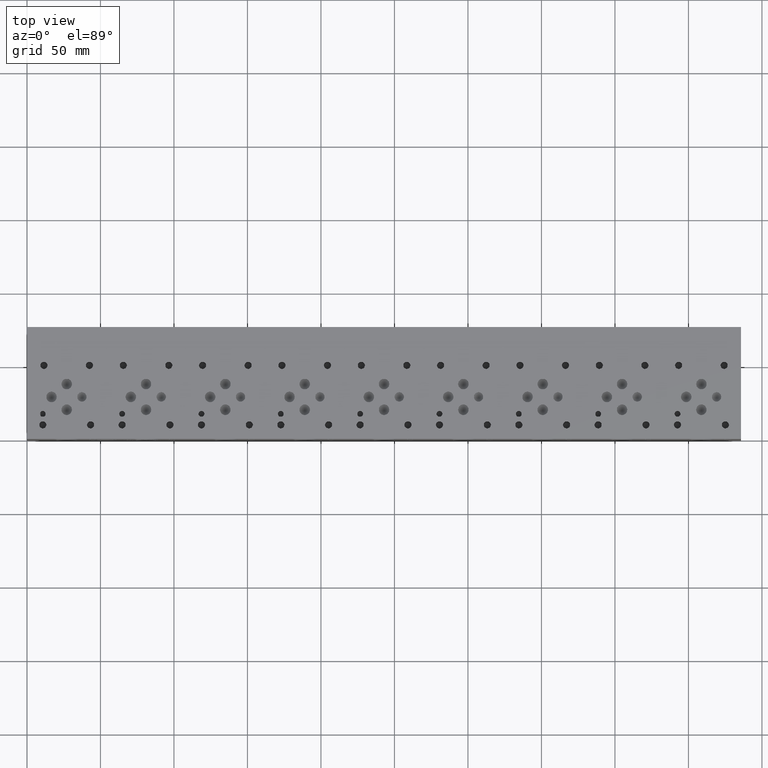
[diagram: clean part render]
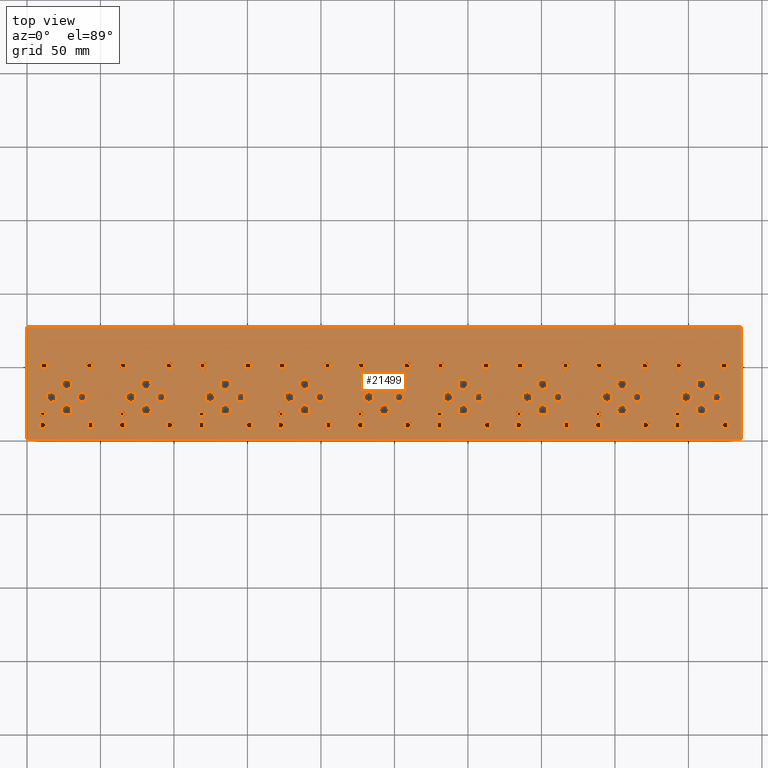
[diagram: same view with one face highlighted and labeled with its STEP entity id]
A machine part, top view. The second image highlights one B-rep face of the part: STEP entity #21499.
In plain terms, the highlighted planar face has unit normal (0, 0, 1).
Its self-contained STEP definition (entity closure, byte-faithful):
#504=CIRCLE('',#22335,1.9812);
#505=CIRCLE('',#22336,1.9812);
#508=CIRCLE('',#22341,1.9812);
#509=CIRCLE('',#22342,1.9812);
#512=CIRCLE('',#22347,1.9812);
#513=CIRCLE('',#22348,1.9812);
#516=CIRCLE('',#22353,1.9812);
#517=CIRCLE('',#22354,1.9812);
#520=CIRCLE('',#22359,1.9812);
#521=CIRCLE('',#22360,1.9812);
#524=CIRCLE('',#22365,1.9812);
#525=CIRCLE('',#22366,1.9812);
#528=CIRCLE('',#22371,1.9812);
#529=CIRCLE('',#22372,1.9812);
#532=CIRCLE('',#22377,1.9812);
#533=CIRCLE('',#22378,1.9812);
#536=CIRCLE('',#22383,3.175);
#537=CIRCLE('',#22384,3.175);
#540=CIRCLE('',#22389,3.175);
#541=CIRCLE('',#22390,3.175);
#544=CIRCLE('',#22395,3.175);
#545=CIRCLE('',#22396,3.175);
#548=CIRCLE('',#22401,3.175);
#549=CIRCLE('',#22402,3.175);
#552=CIRCLE('',#22407,3.175);
#553=CIRCLE('',#22408,3.175);
#556=CIRCLE('',#22413,3.175);
#557=CIRCLE('',#22414,3.175);
#560=CIRCLE('',#22419,3.175);
#561=CIRCLE('',#22420,3.175);
#564=CIRCLE('',#22425,3.175);
#565=CIRCLE('',#22426,3.175);
#568=CIRCLE('',#22431,3.175);
#569=CIRCLE('',#22432,3.175);
#572=CIRCLE('',#22437,3.5687);
#573=CIRCLE('',#22438,3.5687);
#576=CIRCLE('',#22443,3.5687);
#577=CIRCLE('',#22444,3.5687);
#580=CIRCLE('',#22449,3.5687);
#581=CIRCLE('',#22450,3.5687);
#584=CIRCLE('',#22455,3.5687);
#585=CIRCLE('',#22456,3.5687);
#588=CIRCLE('',#22461,3.5687);
#589=CIRCLE('',#22462,3.5687);
#592=CIRCLE('',#22467,3.5687);
#593=CIRCLE('',#22468,3.5687);
#596=CIRCLE('',#22473,3.5687);
#597=CIRCLE('',#22474,3.5687);
#600=CIRCLE('',#22479,3.5687);
#601=CIRCLE('',#22480,3.5687);
#604=CIRCLE('',#22485,3.5687);
#605=CIRCLE('',#22486,3.5687);
#608=CIRCLE('',#22491,3.5687);
#609=CIRCLE('',#22492,3.5687);
#612=CIRCLE('',#22497,3.5687);
#613=CIRCLE('',#22498,3.5687);
#616=CIRCLE('',#22503,3.5687);
#617=CIRCLE('',#22504,3.5687);
#620=CIRCLE('',#22509,3.5687);
#621=CIRCLE('',#22510,3.5687);
#624=CIRCLE('',#22515,3.5687);
#625=CIRCLE('',#22516,3.5687);
#628=CIRCLE('',#22521,3.5687);
#629=CIRCLE('',#22522,3.5687);
#632=CIRCLE('',#22527,3.5687);
#633=CIRCLE('',#22528,3.5687);
#636=CIRCLE('',#22533,3.5687);
#637=CIRCLE('',#22534,3.5687);
#640=CIRCLE('',#22539,3.5687);
#641=CIRCLE('',#22540,3.5687);
#644=CIRCLE('',#22545,3.5687);
#645=CIRCLE('',#22546,3.5687);
#648=CIRCLE('',#22551,3.5687);
#649=CIRCLE('',#22552,3.5687);
#652=CIRCLE('',#22557,3.5687);
#653=CIRCLE('',#22558,3.5687);
#656=CIRCLE('',#22563,3.5687);
#657=CIRCLE('',#22564,3.5687);
#660=CIRCLE('',#22569,3.5687);
#661=CIRCLE('',#22570,3.5687);
#664=CIRCLE('',#22575,3.5687);
#665=CIRCLE('',#22576,3.5687);
#668=CIRCLE('',#22581,3.5687);
#669=CIRCLE('',#22582,3.5687);
#672=CIRCLE('',#22587,3.5687);
#673=CIRCLE('',#22588,3.5687);
#676=CIRCLE('',#22593,3.5687);
#677=CIRCLE('',#22594,3.5687);
#680=CIRCLE('',#22599,1.9812);
#681=CIRCLE('',#22600,1.9812);
#687=CIRCLE('',#22609,2.413);
#688=CIRCLE('',#22610,2.413);
#694=CIRCLE('',#22620,2.413);
#695=CIRCLE('',#22621,2.413);
#701=CIRCLE('',#22631,2.413);
#702=CIRCLE('',#22632,2.413);
#708=CIRCLE('',#22642,2.413);
#709=CIRCLE('',#22643,2.413);
#715=CIRCLE('',#22653,2.413);
#716=CIRCLE('',#22654,2.413);
#722=CIRCLE('',#22664,2.413);
#723=CIRCLE('',#22665,2.413);
#729=CIRCLE('',#22675,2.413);
#730=CIRCLE('',#22676,2.413);
#736=CIRCLE('',#22686,2.413);
#737=CIRCLE('',#22687,2.413);
#743=CIRCLE('',#22697,2.413);
#744=CIRCLE('',#22698,2.413);
#750=CIRCLE('',#22708,2.413);
#751=CIRCLE('',#22709,2.413);
#757=CIRCLE('',#22719,2.413);
#758=CIRCLE('',#22720,2.413);
#764=CIRCLE('',#22730,2.413);
#765=CIRCLE('',#22731,2.413);
#771=CIRCLE('',#22741,2.413);
#772=CIRCLE('',#22742,2.413);
#778=CIRCLE('',#22752,2.413);
#779=CIRCLE('',#22753,2.413);
#785=CIRCLE('',#22763,2.413);
#786=CIRCLE('',#22764,2.413);
#792=CIRCLE('',#22774,2.413);
#793=CIRCLE('',#22775,2.413);
#799=CIRCLE('',#22785,2.413);
#800=CIRCLE('',#22786,2.413);
#806=CIRCLE('',#22796,2.413);
#807=CIRCLE('',#22797,2.413);
#813=CIRCLE('',#22807,2.413);
#814=CIRCLE('',#22808,2.413);
#820=CIRCLE('',#22818,2.413);
#821=CIRCLE('',#22819,2.413);
#827=CIRCLE('',#22829,2.413);
#828=CIRCLE('',#22830,2.413);
#834=CIRCLE('',#22840,2.413);
#835=CIRCLE('',#22841,2.413);
#841=CIRCLE('',#22851,2.413);
#842=CIRCLE('',#22852,2.413);
#848=CIRCLE('',#22862,2.413);
#849=CIRCLE('',#22863,2.413);
#855=CIRCLE('',#22873,2.413);
#856=CIRCLE('',#22874,2.413);
#862=CIRCLE('',#22884,2.413);
#863=CIRCLE('',#22885,2.413);
#869=CIRCLE('',#22895,2.413);
#870=CIRCLE('',#22896,2.413);
#876=CIRCLE('',#22906,2.413);
#877=CIRCLE('',#22907,2.413);
#883=CIRCLE('',#22917,2.413);
#884=CIRCLE('',#22918,2.413);
#890=CIRCLE('',#22928,2.413);
#891=CIRCLE('',#22929,2.413);
#897=CIRCLE('',#22939,2.413);
#898=CIRCLE('',#22940,2.413);
#904=CIRCLE('',#22950,2.413);
#905=CIRCLE('',#22951,2.413);
#911=CIRCLE('',#22961,2.413);
#912=CIRCLE('',#22962,2.413);
#918=CIRCLE('',#22972,2.413);
#919=CIRCLE('',#22973,2.413);
#925=CIRCLE('',#22983,2.413);
#926=CIRCLE('',#22984,2.413);
#932=CIRCLE('',#22994,2.413);
#933=CIRCLE('',#22995,2.413);
#1105=FACE_BOUND('',#4156,.T.);
#1106=FACE_BOUND('',#4157,.T.);
#1107=FACE_BOUND('',#4158,.T.);
#1108=FACE_BOUND('',#4159,.T.);
#1109=FACE_BOUND('',#4160,.T.);
#1110=FACE_BOUND('',#4161,.T.);
#1111=FACE_BOUND('',#4162,.T.);
#1112=FACE_BOUND('',#4163,.T.);
#1113=FACE_BOUND('',#4164,.T.);
#1114=FACE_BOUND('',#4165,.T.);
#1115=FACE_BOUND('',#4166,.T.);
#1116=FACE_BOUND('',#4167,.T.);
#1117=FACE_BOUND('',#4168,.T.);
#1118=FACE_BOUND('',#4169,.T.);
#1119=FACE_BOUND('',#4170,.T.);
#1120=FACE_BOUND('',#4171,.T.);
#1121=FACE_BOUND('',#4172,.T.);
#1122=FACE_BOUND('',#4173,.T.);
#1123=FACE_BOUND('',#4174,.T.);
#1124=FACE_BOUND('',#4175,.T.);
#1125=FACE_BOUND('',#4176,.T.);
#1126=FACE_BOUND('',#4177,.T.);
#1127=FACE_BOUND('',#4178,.T.);
#1128=FACE_BOUND('',#4179,.T.);
#1129=FACE_BOUND('',#4180,.T.);
#1130=FACE_BOUND('',#4181,.T.);
#1131=FACE_BOUND('',#4182,.T.);
#1132=FACE_BOUND('',#4183,.T.);
#1133=FACE_BOUND('',#4184,.T.);
#1134=FACE_BOUND('',#4185,.T.);
#1135=FACE_BOUND('',#4186,.T.);
#1136=FACE_BOUND('',#4187,.T.);
#1137=FACE_BOUND('',#4188,.T.);
#1138=FACE_BOUND('',#4189,.T.);
#1139=FACE_BOUND('',#4190,.T.);
#1140=FACE_BOUND('',#4191,.T.);
#1141=FACE_BOUND('',#4192,.T.);
#1142=FACE_BOUND('',#4193,.T.);
#1143=FACE_BOUND('',#4194,.T.);
#1144=FACE_BOUND('',#4195,.T.);
#1145=FACE_BOUND('',#4196,.T.);
#1146=FACE_BOUND('',#4197,.T.);
#1147=FACE_BOUND('',#4198,.T.);
#1148=FACE_BOUND('',#4199,.T.);
#1149=FACE_BOUND('',#4200,.T.);
#1150=FACE_BOUND('',#4201,.T.);
#1151=FACE_BOUND('',#4202,.T.);
#1152=FACE_BOUND('',#4203,.T.);
#1153=FACE_BOUND('',#4204,.T.);
#1154=FACE_BOUND('',#4205,.T.);
#1155=FACE_BOUND('',#4206,.T.);
#1156=FACE_BOUND('',#4207,.T.);
#1157=FACE_BOUND('',#4208,.T.);
#1158=FACE_BOUND('',#4209,.T.);
#1159=FACE_BOUND('',#4210,.T.);
#1160=FACE_BOUND('',#4211,.T.);
#1161=FACE_BOUND('',#4212,.T.);
#1162=FACE_BOUND('',#4213,.T.);
#1163=FACE_BOUND('',#4214,.T.);
#1164=FACE_BOUND('',#4215,.T.);
#1165=FACE_BOUND('',#4216,.T.);
#1166=FACE_BOUND('',#4217,.T.);
#1167=FACE_BOUND('',#4218,.T.);
#1168=FACE_BOUND('',#4219,.T.);
#1169=FACE_BOUND('',#4220,.T.);
#1170=FACE_BOUND('',#4221,.T.);
#1171=FACE_BOUND('',#4222,.T.);
#1172=FACE_BOUND('',#4223,.T.);
#1173=FACE_BOUND('',#4224,.T.);
#1174=FACE_BOUND('',#4225,.T.);
#1175=FACE_BOUND('',#4226,.T.);
#1176=FACE_BOUND('',#4227,.T.);
#1177=FACE_BOUND('',#4228,.T.);
#1178=FACE_BOUND('',#4229,.T.);
#1179=FACE_BOUND('',#4230,.T.);
#1180=FACE_BOUND('',#4231,.T.);
#1181=FACE_BOUND('',#4232,.T.);
#1182=FACE_BOUND('',#4233,.T.);
#1183=FACE_BOUND('',#4234,.T.);
#1184=FACE_BOUND('',#4235,.T.);
#1185=FACE_BOUND('',#4236,.T.);
#1752=PLANE('',#23001);
#2868=FACE_OUTER_BOUND('',#4155,.T.);
#4155=EDGE_LOOP('',(#19232,#19233,#19234,#19235));
#4156=EDGE_LOOP('',(#19236,#19237));
#4157=EDGE_LOOP('',(#19238,#19239));
#4158=EDGE_LOOP('',(#19240,#19241));
#4159=EDGE_LOOP('',(#19242,#19243));
#4160=EDGE_LOOP('',(#19244,#19245));
#4161=EDGE_LOOP('',(#19246,#19247));
#4162=EDGE_LOOP('',(#19248,#19249));
#4163=EDGE_LOOP('',(#19250,#19251));
#4164=EDGE_LOOP('',(#19252,#19253));
#4165=EDGE_LOOP('',(#19254,#19255));
#4166=EDGE_LOOP('',(#19256,#19257));
#4167=EDGE_LOOP('',(#19258,#19259));
#4168=EDGE_LOOP('',(#19260,#19261));
#4169=EDGE_LOOP('',(#19262,#19263));
#4170=EDGE_LOOP('',(#19264,#19265));
#4171=EDGE_LOOP('',(#19266,#19267));
#4172=EDGE_LOOP('',(#19268,#19269));
#4173=EDGE_LOOP('',(#19270,#19271));
#4174=EDGE_LOOP('',(#19272,#19273));
#4175=EDGE_LOOP('',(#19274,#19275));
#4176=EDGE_LOOP('',(#19276,#19277));
#4177=EDGE_LOOP('',(#19278,#19279));
#4178=EDGE_LOOP('',(#19280,#19281));
#4179=EDGE_LOOP('',(#19282,#19283));
#4180=EDGE_LOOP('',(#19284,#19285));
#4181=EDGE_LOOP('',(#19286,#19287));
#4182=EDGE_LOOP('',(#19288,#19289));
#4183=EDGE_LOOP('',(#19290,#19291));
#4184=EDGE_LOOP('',(#19292,#19293));
#4185=EDGE_LOOP('',(#19294,#19295));
#4186=EDGE_LOOP('',(#19296,#19297));
#4187=EDGE_LOOP('',(#19298,#19299));
#4188=EDGE_LOOP('',(#19300,#19301));
#4189=EDGE_LOOP('',(#19302,#19303));
#4190=EDGE_LOOP('',(#19304,#19305));
#4191=EDGE_LOOP('',(#19306,#19307));
#4192=EDGE_LOOP('',(#19308,#19309));
#4193=EDGE_LOOP('',(#19310,#19311));
#4194=EDGE_LOOP('',(#19312,#19313));
#4195=EDGE_LOOP('',(#19314,#19315));
#4196=EDGE_LOOP('',(#19316,#19317));
#4197=EDGE_LOOP('',(#19318,#19319));
#4198=EDGE_LOOP('',(#19320,#19321));
#4199=EDGE_LOOP('',(#19322,#19323));
#4200=EDGE_LOOP('',(#19324,#19325));
#4201=EDGE_LOOP('',(#19326,#19327));
#4202=EDGE_LOOP('',(#19328,#19329));
#4203=EDGE_LOOP('',(#19330,#19331));
#4204=EDGE_LOOP('',(#19332,#19333));
#4205=EDGE_LOOP('',(#19334,#19335));
#4206=EDGE_LOOP('',(#19336,#19337));
#4207=EDGE_LOOP('',(#19338,#19339));
#4208=EDGE_LOOP('',(#19340,#19341));
#4209=EDGE_LOOP('',(#19342,#19343));
#4210=EDGE_LOOP('',(#19344,#19345));
#4211=EDGE_LOOP('',(#19346,#19347));
#4212=EDGE_LOOP('',(#19348,#19349));
#4213=EDGE_LOOP('',(#19350,#19351));
#4214=EDGE_LOOP('',(#19352,#19353));
#4215=EDGE_LOOP('',(#19354,#19355));
#4216=EDGE_LOOP('',(#19356,#19357));
#4217=EDGE_LOOP('',(#19358,#19359));
#4218=EDGE_LOOP('',(#19360,#19361));
#4219=EDGE_LOOP('',(#19362,#19363));
#4220=EDGE_LOOP('',(#19364,#19365));
#4221=EDGE_LOOP('',(#19366,#19367));
#4222=EDGE_LOOP('',(#19368,#19369));
#4223=EDGE_LOOP('',(#19370,#19371));
#4224=EDGE_LOOP('',(#19372,#19373));
#4225=EDGE_LOOP('',(#19374,#19375));
#4226=EDGE_LOOP('',(#19376,#19377));
#4227=EDGE_LOOP('',(#19378,#19379));
#4228=EDGE_LOOP('',(#19380,#19381));
#4229=EDGE_LOOP('',(#19382,#19383));
#4230=EDGE_LOOP('',(#19384,#19385));
#4231=EDGE_LOOP('',(#19386,#19387));
#4232=EDGE_LOOP('',(#19388,#19389));
#4233=EDGE_LOOP('',(#19390,#19391));
#4234=EDGE_LOOP('',(#19392,#19393));
#4235=EDGE_LOOP('',(#19394,#19395));
#4236=EDGE_LOOP('',(#19396,#19397));
#4284=LINE('',#28130,#6098);
#5679=LINE('',#35132,#7493);
#5737=LINE('',#35403,#7551);
#6051=LINE('',#37376,#7865);
#6098=VECTOR('',#23075,10.);
#7493=VECTOR('',#25464,10.);
#7551=VECTOR('',#25576,10.);
#7865=VECTOR('',#27786,10.);
#8438=VERTEX_POINT('',#28127);
#8439=VERTEX_POINT('',#28129);
#9725=VERTEX_POINT('',#35130);
#9783=VERTEX_POINT('',#35402);
#9985=VERTEX_POINT('',#36004);
#9986=VERTEX_POINT('',#36005);
#9990=VERTEX_POINT('',#36017);
#9991=VERTEX_POINT('',#36018);
#9995=VERTEX_POINT('',#36030);
#9996=VERTEX_POINT('',#36031);
#10000=VERTEX_POINT('',#36043);
#10001=VERTEX_POINT('',#36044);
#10005=VERTEX_POINT('',#36056);
#10006=VERTEX_POINT('',#36057);
#10010=VERTEX_POINT('',#36069);
#10011=VERTEX_POINT('',#36070);
#10015=VERTEX_POINT('',#36082);
#10016=VERTEX_POINT('',#36083);
#10020=VERTEX_POINT('',#36095);
#10021=VERTEX_POINT('',#36096);
#10025=VERTEX_POINT('',#36108);
#10026=VERTEX_POINT('',#36109);
#10030=VERTEX_POINT('',#36121);
#10031=VERTEX_POINT('',#36122);
#10035=VERTEX_POINT('',#36134);
#10036=VERTEX_POINT('',#36135);
#10040=VERTEX_POINT('',#36147);
#10041=VERTEX_POINT('',#36148);
#10045=VERTEX_POINT('',#36160);
#10046=VERTEX_POINT('',#36161);
#10050=VERTEX_POINT('',#36173);
#10051=VERTEX_POINT('',#36174);
#10055=VERTEX_POINT('',#36186);
#10056=VERTEX_POINT('',#36187);
#10060=VERTEX_POINT('',#36199);
#10061=VERTEX_POINT('',#36200);
#10065=VERTEX_POINT('',#36212);
#10066=VERTEX_POINT('',#36213);
#10070=VERTEX_POINT('',#36225);
#10071=VERTEX_POINT('',#36226);
#10075=VERTEX_POINT('',#36238);
#10076=VERTEX_POINT('',#36239);
#10080=VERTEX_POINT('',#36251);
#10081=VERTEX_POINT('',#36252);
#10085=VERTEX_POINT('',#36264);
#10086=VERTEX_POINT('',#36265);
#10090=VERTEX_POINT('',#36277);
#10091=VERTEX_POINT('',#36278);
#10095=VERTEX_POINT('',#36290);
#10096=VERTEX_POINT('',#36291);
#10100=VERTEX_POINT('',#36303);
#10101=VERTEX_POINT('',#36304);
#10105=VERTEX_POINT('',#36316);
#10106=VERTEX_POINT('',#36317);
#10110=VERTEX_POINT('',#36329);
#10111=VERTEX_POINT('',#36330);
#10115=VERTEX_POINT('',#36342);
#10116=VERTEX_POINT('',#36343);
#10120=VERTEX_POINT('',#36355);
#10121=VERTEX_POINT('',#36356);
#10125=VERTEX_POINT('',#36368);
#10126=VERTEX_POINT('',#36369);
#10130=VERTEX_POINT('',#36381);
#10131=VERTEX_POINT('',#36382);
#10135=VERTEX_POINT('',#36394);
#10136=VERTEX_POINT('',#36395);
#10140=VERTEX_POINT('',#36407);
#10141=VERTEX_POINT('',#36408);
#10145=VERTEX_POINT('',#36420);
#10146=VERTEX_POINT('',#36421);
#10150=VERTEX_POINT('',#36433);
#10151=VERTEX_POINT('',#36434);
#10155=VERTEX_POINT('',#36446);
#10156=VERTEX_POINT('',#36447);
#10160=VERTEX_POINT('',#36459);
#10161=VERTEX_POINT('',#36460);
#10165=VERTEX_POINT('',#36472);
#10166=VERTEX_POINT('',#36473);
#10170=VERTEX_POINT('',#36485);
#10171=VERTEX_POINT('',#36486);
#10175=VERTEX_POINT('',#36498);
#10176=VERTEX_POINT('',#36499);
#10180=VERTEX_POINT('',#36511);
#10181=VERTEX_POINT('',#36512);
#10185=VERTEX_POINT('',#36524);
#10186=VERTEX_POINT('',#36525);
#10190=VERTEX_POINT('',#36537);
#10191=VERTEX_POINT('',#36538);
#10195=VERTEX_POINT('',#36550);
#10196=VERTEX_POINT('',#36551);
#10200=VERTEX_POINT('',#36563);
#10201=VERTEX_POINT('',#36564);
#10205=VERTEX_POINT('',#36576);
#10206=VERTEX_POINT('',#36577);
#10213=VERTEX_POINT('',#36596);
#10214=VERTEX_POINT('',#36597);
#10221=VERTEX_POINT('',#36618);
#10222=VERTEX_POINT('',#36619);
#10229=VERTEX_POINT('',#36640);
#10230=VERTEX_POINT('',#36641);
#10237=VERTEX_POINT('',#36662);
#10238=VERTEX_POINT('',#36663);
#10245=VERTEX_POINT('',#36684);
#10246=VERTEX_POINT('',#36685);
#10253=VERTEX_POINT('',#36706);
#10254=VERTEX_POINT('',#36707);
#10261=VERTEX_POINT('',#36728);
#10262=VERTEX_POINT('',#36729);
#10269=VERTEX_POINT('',#36750);
#10270=VERTEX_POINT('',#36751);
#10277=VERTEX_POINT('',#36772);
#10278=VERTEX_POINT('',#36773);
#10285=VERTEX_POINT('',#36794);
#10286=VERTEX_POINT('',#36795);
#10293=VERTEX_POINT('',#36816);
#10294=VERTEX_POINT('',#36817);
#10301=VERTEX_POINT('',#36838);
#10302=VERTEX_POINT('',#36839);
#10309=VERTEX_POINT('',#36860);
#10310=VERTEX_POINT('',#36861);
#10317=VERTEX_POINT('',#36882);
#10318=VERTEX_POINT('',#36883);
#10325=VERTEX_POINT('',#36904);
#10326=VERTEX_POINT('',#36905);
#10333=VERTEX_POINT('',#36926);
#10334=VERTEX_POINT('',#36927);
#10341=VERTEX_POINT('',#36948);
#10342=VERTEX_POINT('',#36949);
#10349=VERTEX_POINT('',#36970);
#10350=VERTEX_POINT('',#36971);
#10357=VERTEX_POINT('',#36992);
#10358=VERTEX_POINT('',#36993);
#10365=VERTEX_POINT('',#37014);
#10366=VERTEX_POINT('',#37015);
#10373=VERTEX_POINT('',#37036);
#10374=VERTEX_POINT('',#37037);
#10381=VERTEX_POINT('',#37058);
#10382=VERTEX_POINT('',#37059);
#10389=VERTEX_POINT('',#37080);
#10390=VERTEX_POINT('',#37081);
#10397=VERTEX_POINT('',#37102);
#10398=VERTEX_POINT('',#37103);
#10405=VERTEX_POINT('',#37124);
#10406=VERTEX_POINT('',#37125);
#10413=VERTEX_POINT('',#37146);
#10414=VERTEX_POINT('',#37147);
#10421=VERTEX_POINT('',#37168);
#10422=VERTEX_POINT('',#37169);
#10429=VERTEX_POINT('',#37190);
#10430=VERTEX_POINT('',#37191);
#10437=VERTEX_POINT('',#37212);
#10438=VERTEX_POINT('',#37213);
#10445=VERTEX_POINT('',#37234);
#10446=VERTEX_POINT('',#37235);
#10453=VERTEX_POINT('',#37256);
#10454=VERTEX_POINT('',#37257);
#10461=VERTEX_POINT('',#37278);
#10462=VERTEX_POINT('',#37279);
#10469=VERTEX_POINT('',#37300);
#10470=VERTEX_POINT('',#37301);
#10477=VERTEX_POINT('',#37322);
#10478=VERTEX_POINT('',#37323);
#10485=VERTEX_POINT('',#37344);
#10486=VERTEX_POINT('',#37345);
#10493=VERTEX_POINT('',#37366);
#10494=VERTEX_POINT('',#37367);
#10569=EDGE_CURVE('',#8439,#8438,#4284,.T.);
#12480=EDGE_CURVE('',#8438,#9725,#5679,.T.);
#12562=EDGE_CURVE('',#9783,#8439,#5737,.T.);
#12835=EDGE_CURVE('',#9985,#9986,#504,.T.);
#12836=EDGE_CURVE('',#9986,#9985,#505,.T.);
#12841=EDGE_CURVE('',#9990,#9991,#508,.T.);
#12842=EDGE_CURVE('',#9991,#9990,#509,.T.);
#12847=EDGE_CURVE('',#9995,#9996,#512,.T.);
#12848=EDGE_CURVE('',#9996,#9995,#513,.T.);
#12853=EDGE_CURVE('',#10000,#10001,#516,.T.);
#12854=EDGE_CURVE('',#10001,#10000,#517,.T.);
#12859=EDGE_CURVE('',#10005,#10006,#520,.T.);
#12860=EDGE_CURVE('',#10006,#10005,#521,.T.);
#12865=EDGE_CURVE('',#10010,#10011,#524,.T.);
#12866=EDGE_CURVE('',#10011,#10010,#525,.T.);
#12871=EDGE_CURVE('',#10015,#10016,#528,.T.);
#12872=EDGE_CURVE('',#10016,#10015,#529,.T.);
#12877=EDGE_CURVE('',#10020,#10021,#532,.T.);
#12878=EDGE_CURVE('',#10021,#10020,#533,.T.);
#12883=EDGE_CURVE('',#10025,#10026,#536,.T.);
#12884=EDGE_CURVE('',#10026,#10025,#537,.T.);
#12889=EDGE_CURVE('',#10030,#10031,#540,.T.);
#12890=EDGE_CURVE('',#10031,#10030,#541,.T.);
#12895=EDGE_CURVE('',#10035,#10036,#544,.T.);
#12896=EDGE_CURVE('',#10036,#10035,#545,.T.);
#12901=EDGE_CURVE('',#10040,#10041,#548,.T.);
#12902=EDGE_CURVE('',#10041,#10040,#549,.T.);
#12907=EDGE_CURVE('',#10045,#10046,#552,.T.);
#12908=EDGE_CURVE('',#10046,#10045,#553,.T.);
#12913=EDGE_CURVE('',#10050,#10051,#556,.T.);
#12914=EDGE_CURVE('',#10051,#10050,#557,.T.);
#12919=EDGE_CURVE('',#10055,#10056,#560,.T.);
#12920=EDGE_CURVE('',#10056,#10055,#561,.T.);
#12925=EDGE_CURVE('',#10060,#10061,#564,.T.);
#12926=EDGE_CURVE('',#10061,#10060,#565,.T.);
#12931=EDGE_CURVE('',#10065,#10066,#568,.T.);
#12932=EDGE_CURVE('',#10066,#10065,#569,.T.);
#12937=EDGE_CURVE('',#10070,#10071,#572,.T.);
#12938=EDGE_CURVE('',#10071,#10070,#573,.T.);
#12943=EDGE_CURVE('',#10075,#10076,#576,.T.);
#12944=EDGE_CURVE('',#10076,#10075,#577,.T.);
#12949=EDGE_CURVE('',#10080,#10081,#580,.T.);
#12950=EDGE_CURVE('',#10081,#10080,#581,.T.);
#12955=EDGE_CURVE('',#10085,#10086,#584,.T.);
#12956=EDGE_CURVE('',#10086,#10085,#585,.T.);
#12961=EDGE_CURVE('',#10090,#10091,#588,.T.);
#12962=EDGE_CURVE('',#10091,#10090,#589,.T.);
#12967=EDGE_CURVE('',#10095,#10096,#592,.T.);
#12968=EDGE_CURVE('',#10096,#10095,#593,.T.);
#12973=EDGE_CURVE('',#10100,#10101,#596,.T.);
#12974=EDGE_CURVE('',#10101,#10100,#597,.T.);
#12979=EDGE_CURVE('',#10105,#10106,#600,.T.);
#12980=EDGE_CURVE('',#10106,#10105,#601,.T.);
#12985=EDGE_CURVE('',#10110,#10111,#604,.T.);
#12986=EDGE_CURVE('',#10111,#10110,#605,.T.);
#12991=EDGE_CURVE('',#10115,#10116,#608,.T.);
#12992=EDGE_CURVE('',#10116,#10115,#609,.T.);
#12997=EDGE_CURVE('',#10120,#10121,#612,.T.);
#12998=EDGE_CURVE('',#10121,#10120,#613,.T.);
#13003=EDGE_CURVE('',#10125,#10126,#616,.T.);
#13004=EDGE_CURVE('',#10126,#10125,#617,.T.);
#13009=EDGE_CURVE('',#10130,#10131,#620,.T.);
#13010=EDGE_CURVE('',#10131,#10130,#621,.T.);
#13015=EDGE_CURVE('',#10135,#10136,#624,.T.);
#13016=EDGE_CURVE('',#10136,#10135,#625,.T.);
#13021=EDGE_CURVE('',#10140,#10141,#628,.T.);
#13022=EDGE_CURVE('',#10141,#10140,#629,.T.);
#13027=EDGE_CURVE('',#10145,#10146,#632,.T.);
#13028=EDGE_CURVE('',#10146,#10145,#633,.T.);
#13033=EDGE_CURVE('',#10150,#10151,#636,.T.);
#13034=EDGE_CURVE('',#10151,#10150,#637,.T.);
#13039=EDGE_CURVE('',#10155,#10156,#640,.T.);
#13040=EDGE_CURVE('',#10156,#10155,#641,.T.);
#13045=EDGE_CURVE('',#10160,#10161,#644,.T.);
#13046=EDGE_CURVE('',#10161,#10160,#645,.T.);
#13051=EDGE_CURVE('',#10165,#10166,#648,.T.);
#13052=EDGE_CURVE('',#10166,#10165,#649,.T.);
#13057=EDGE_CURVE('',#10170,#10171,#652,.T.);
#13058=EDGE_CURVE('',#10171,#10170,#653,.T.);
#13063=EDGE_CURVE('',#10175,#10176,#656,.T.);
#13064=EDGE_CURVE('',#10176,#10175,#657,.T.);
#13069=EDGE_CURVE('',#10180,#10181,#660,.T.);
#13070=EDGE_CURVE('',#10181,#10180,#661,.T.);
#13075=EDGE_CURVE('',#10185,#10186,#664,.T.);
#13076=EDGE_CURVE('',#10186,#10185,#665,.T.);
#13081=EDGE_CURVE('',#10190,#10191,#668,.T.);
#13082=EDGE_CURVE('',#10191,#10190,#669,.T.);
#13087=EDGE_CURVE('',#10195,#10196,#672,.T.);
#13088=EDGE_CURVE('',#10196,#10195,#673,.T.);
#13093=EDGE_CURVE('',#10200,#10201,#676,.T.);
#13094=EDGE_CURVE('',#10201,#10200,#677,.T.);
#13099=EDGE_CURVE('',#10205,#10206,#680,.T.);
#13100=EDGE_CURVE('',#10206,#10205,#681,.T.);
#13108=EDGE_CURVE('',#10213,#10214,#687,.T.);
#13109=EDGE_CURVE('',#10214,#10213,#688,.T.);
#13118=EDGE_CURVE('',#10221,#10222,#694,.T.);
#13119=EDGE_CURVE('',#10222,#10221,#695,.T.);
#13128=EDGE_CURVE('',#10229,#10230,#701,.T.);
#13129=EDGE_CURVE('',#10230,#10229,#702,.T.);
#13138=EDGE_CURVE('',#10237,#10238,#708,.T.);
#13139=EDGE_CURVE('',#10238,#10237,#709,.T.);
#13148=EDGE_CURVE('',#10245,#10246,#715,.T.);
#13149=EDGE_CURVE('',#10246,#10245,#716,.T.);
#13158=EDGE_CURVE('',#10253,#10254,#722,.T.);
#13159=EDGE_CURVE('',#10254,#10253,#723,.T.);
#13168=EDGE_CURVE('',#10261,#10262,#729,.T.);
#13169=EDGE_CURVE('',#10262,#10261,#730,.T.);
#13178=EDGE_CURVE('',#10269,#10270,#736,.T.);
#13179=EDGE_CURVE('',#10270,#10269,#737,.T.);
#13188=EDGE_CURVE('',#10277,#10278,#743,.T.);
#13189=EDGE_CURVE('',#10278,#10277,#744,.T.);
#13198=EDGE_CURVE('',#10285,#10286,#750,.T.);
#13199=EDGE_CURVE('',#10286,#10285,#751,.T.);
#13208=EDGE_CURVE('',#10293,#10294,#757,.T.);
#13209=EDGE_CURVE('',#10294,#10293,#758,.T.);
#13218=EDGE_CURVE('',#10301,#10302,#764,.T.);
#13219=EDGE_CURVE('',#10302,#10301,#765,.T.);
#13228=EDGE_CURVE('',#10309,#10310,#771,.T.);
#13229=EDGE_CURVE('',#10310,#10309,#772,.T.);
#13238=EDGE_CURVE('',#10317,#10318,#778,.T.);
#13239=EDGE_CURVE('',#10318,#10317,#779,.T.);
#13248=EDGE_CURVE('',#10325,#10326,#785,.T.);
#13249=EDGE_CURVE('',#10326,#10325,#786,.T.);
#13258=EDGE_CURVE('',#10333,#10334,#792,.T.);
#13259=EDGE_CURVE('',#10334,#10333,#793,.T.);
#13268=EDGE_CURVE('',#10341,#10342,#799,.T.);
#13269=EDGE_CURVE('',#10342,#10341,#800,.T.);
#13278=EDGE_CURVE('',#10349,#10350,#806,.T.);
#13279=EDGE_CURVE('',#10350,#10349,#807,.T.);
#13288=EDGE_CURVE('',#10357,#10358,#813,.T.);
#13289=EDGE_CURVE('',#10358,#10357,#814,.T.);
#13298=EDGE_CURVE('',#10365,#10366,#820,.T.);
#13299=EDGE_CURVE('',#10366,#10365,#821,.T.);
#13308=EDGE_CURVE('',#10373,#10374,#827,.T.);
#13309=EDGE_CURVE('',#10374,#10373,#828,.T.);
#13318=EDGE_CURVE('',#10381,#10382,#834,.T.);
#13319=EDGE_CURVE('',#10382,#10381,#835,.T.);
#13328=EDGE_CURVE('',#10389,#10390,#841,.T.);
#13329=EDGE_CURVE('',#10390,#10389,#842,.T.);
#13338=EDGE_CURVE('',#10397,#10398,#848,.T.);
#13339=EDGE_CURVE('',#10398,#10397,#849,.T.);
#13348=EDGE_CURVE('',#10405,#10406,#855,.T.);
#13349=EDGE_CURVE('',#10406,#10405,#856,.T.);
#13358=EDGE_CURVE('',#10413,#10414,#862,.T.);
#13359=EDGE_CURVE('',#10414,#10413,#863,.T.);
#13368=EDGE_CURVE('',#10421,#10422,#869,.T.);
#13369=EDGE_CURVE('',#10422,#10421,#870,.T.);
#13378=EDGE_CURVE('',#10429,#10430,#876,.T.);
#13379=EDGE_CURVE('',#10430,#10429,#877,.T.);
#13388=EDGE_CURVE('',#10437,#10438,#883,.T.);
#13389=EDGE_CURVE('',#10438,#10437,#884,.T.);
#13398=EDGE_CURVE('',#10445,#10446,#890,.T.);
#13399=EDGE_CURVE('',#10446,#10445,#891,.T.);
#13408=EDGE_CURVE('',#10453,#10454,#897,.T.);
#13409=EDGE_CURVE('',#10454,#10453,#898,.T.);
#13418=EDGE_CURVE('',#10461,#10462,#904,.T.);
#13419=EDGE_CURVE('',#10462,#10461,#905,.T.);
#13428=EDGE_CURVE('',#10469,#10470,#911,.T.);
#13429=EDGE_CURVE('',#10470,#10469,#912,.T.);
#13438=EDGE_CURVE('',#10477,#10478,#918,.T.);
#13439=EDGE_CURVE('',#10478,#10477,#919,.T.);
#13448=EDGE_CURVE('',#10485,#10486,#925,.T.);
#13449=EDGE_CURVE('',#10486,#10485,#926,.T.);
#13458=EDGE_CURVE('',#10493,#10494,#932,.T.);
#13459=EDGE_CURVE('',#10494,#10493,#933,.T.);
#13463=EDGE_CURVE('',#9725,#9783,#6051,.T.);
#19232=ORIENTED_EDGE('',*,*,#10569,.T.);
#19233=ORIENTED_EDGE('',*,*,#12480,.T.);
#19234=ORIENTED_EDGE('',*,*,#13463,.T.);
#19235=ORIENTED_EDGE('',*,*,#12562,.T.);
#19236=ORIENTED_EDGE('',*,*,#12835,.T.);
#19237=ORIENTED_EDGE('',*,*,#12836,.T.);
#19238=ORIENTED_EDGE('',*,*,#12841,.T.);
#19239=ORIENTED_EDGE('',*,*,#12842,.T.);
#19240=ORIENTED_EDGE('',*,*,#12847,.T.);
#19241=ORIENTED_EDGE('',*,*,#12848,.T.);
#19242=ORIENTED_EDGE('',*,*,#12853,.T.);
#19243=ORIENTED_EDGE('',*,*,#12854,.T.);
#19244=ORIENTED_EDGE('',*,*,#12859,.T.);
#19245=ORIENTED_EDGE('',*,*,#12860,.T.);
#19246=ORIENTED_EDGE('',*,*,#12865,.T.);
#19247=ORIENTED_EDGE('',*,*,#12866,.T.);
#19248=ORIENTED_EDGE('',*,*,#12871,.T.);
#19249=ORIENTED_EDGE('',*,*,#12872,.T.);
#19250=ORIENTED_EDGE('',*,*,#12877,.T.);
#19251=ORIENTED_EDGE('',*,*,#12878,.T.);
#19252=ORIENTED_EDGE('',*,*,#12883,.T.);
#19253=ORIENTED_EDGE('',*,*,#12884,.T.);
#19254=ORIENTED_EDGE('',*,*,#12889,.T.);
#19255=ORIENTED_EDGE('',*,*,#12890,.T.);
#19256=ORIENTED_EDGE('',*,*,#12895,.T.);
#19257=ORIENTED_EDGE('',*,*,#12896,.T.);
#19258=ORIENTED_EDGE('',*,*,#12901,.T.);
#19259=ORIENTED_EDGE('',*,*,#12902,.T.);
#19260=ORIENTED_EDGE('',*,*,#12907,.T.);
#19261=ORIENTED_EDGE('',*,*,#12908,.T.);
#19262=ORIENTED_EDGE('',*,*,#12913,.T.);
#19263=ORIENTED_EDGE('',*,*,#12914,.T.);
#19264=ORIENTED_EDGE('',*,*,#12919,.T.);
#19265=ORIENTED_EDGE('',*,*,#12920,.T.);
#19266=ORIENTED_EDGE('',*,*,#12925,.T.);
#19267=ORIENTED_EDGE('',*,*,#12926,.T.);
#19268=ORIENTED_EDGE('',*,*,#12931,.T.);
#19269=ORIENTED_EDGE('',*,*,#12932,.T.);
#19270=ORIENTED_EDGE('',*,*,#12937,.T.);
#19271=ORIENTED_EDGE('',*,*,#12938,.T.);
#19272=ORIENTED_EDGE('',*,*,#12943,.T.);
#19273=ORIENTED_EDGE('',*,*,#12944,.T.);
#19274=ORIENTED_EDGE('',*,*,#12949,.T.);
#19275=ORIENTED_EDGE('',*,*,#12950,.T.);
#19276=ORIENTED_EDGE('',*,*,#12955,.T.);
#19277=ORIENTED_EDGE('',*,*,#12956,.T.);
#19278=ORIENTED_EDGE('',*,*,#12961,.T.);
#19279=ORIENTED_EDGE('',*,*,#12962,.T.);
#19280=ORIENTED_EDGE('',*,*,#12967,.T.);
#19281=ORIENTED_EDGE('',*,*,#12968,.T.);
#19282=ORIENTED_EDGE('',*,*,#12973,.T.);
#19283=ORIENTED_EDGE('',*,*,#12974,.T.);
#19284=ORIENTED_EDGE('',*,*,#12979,.T.);
#19285=ORIENTED_EDGE('',*,*,#12980,.T.);
#19286=ORIENTED_EDGE('',*,*,#12985,.T.);
#19287=ORIENTED_EDGE('',*,*,#12986,.T.);
#19288=ORIENTED_EDGE('',*,*,#12991,.T.);
#19289=ORIENTED_EDGE('',*,*,#12992,.T.);
#19290=ORIENTED_EDGE('',*,*,#12997,.T.);
#19291=ORIENTED_EDGE('',*,*,#12998,.T.);
#19292=ORIENTED_EDGE('',*,*,#13003,.T.);
#19293=ORIENTED_EDGE('',*,*,#13004,.T.);
#19294=ORIENTED_EDGE('',*,*,#13009,.T.);
#19295=ORIENTED_EDGE('',*,*,#13010,.T.);
#19296=ORIENTED_EDGE('',*,*,#13015,.T.);
#19297=ORIENTED_EDGE('',*,*,#13016,.T.);
#19298=ORIENTED_EDGE('',*,*,#13021,.T.);
#19299=ORIENTED_EDGE('',*,*,#13022,.T.);
#19300=ORIENTED_EDGE('',*,*,#13027,.T.);
#19301=ORIENTED_EDGE('',*,*,#13028,.T.);
#19302=ORIENTED_EDGE('',*,*,#13033,.T.);
#19303=ORIENTED_EDGE('',*,*,#13034,.T.);
#19304=ORIENTED_EDGE('',*,*,#13039,.T.);
#19305=ORIENTED_EDGE('',*,*,#13040,.T.);
#19306=ORIENTED_EDGE('',*,*,#13045,.T.);
#19307=ORIENTED_EDGE('',*,*,#13046,.T.);
#19308=ORIENTED_EDGE('',*,*,#13051,.T.);
#19309=ORIENTED_EDGE('',*,*,#13052,.T.);
#19310=ORIENTED_EDGE('',*,*,#13057,.T.);
#19311=ORIENTED_EDGE('',*,*,#13058,.T.);
#19312=ORIENTED_EDGE('',*,*,#13063,.T.);
#19313=ORIENTED_EDGE('',*,*,#13064,.T.);
#19314=ORIENTED_EDGE('',*,*,#13069,.T.);
#19315=ORIENTED_EDGE('',*,*,#13070,.T.);
#19316=ORIENTED_EDGE('',*,*,#13075,.T.);
#19317=ORIENTED_EDGE('',*,*,#13076,.T.);
#19318=ORIENTED_EDGE('',*,*,#13081,.T.);
#19319=ORIENTED_EDGE('',*,*,#13082,.T.);
#19320=ORIENTED_EDGE('',*,*,#13087,.T.);
#19321=ORIENTED_EDGE('',*,*,#13088,.T.);
#19322=ORIENTED_EDGE('',*,*,#13093,.T.);
#19323=ORIENTED_EDGE('',*,*,#13094,.T.);
#19324=ORIENTED_EDGE('',*,*,#13099,.T.);
#19325=ORIENTED_EDGE('',*,*,#13100,.T.);
#19326=ORIENTED_EDGE('',*,*,#13108,.T.);
#19327=ORIENTED_EDGE('',*,*,#13109,.T.);
#19328=ORIENTED_EDGE('',*,*,#13118,.T.);
#19329=ORIENTED_EDGE('',*,*,#13119,.T.);
#19330=ORIENTED_EDGE('',*,*,#13128,.T.);
#19331=ORIENTED_EDGE('',*,*,#13129,.T.);
#19332=ORIENTED_EDGE('',*,*,#13138,.T.);
#19333=ORIENTED_EDGE('',*,*,#13139,.T.);
#19334=ORIENTED_EDGE('',*,*,#13148,.T.);
#19335=ORIENTED_EDGE('',*,*,#13149,.T.);
#19336=ORIENTED_EDGE('',*,*,#13158,.T.);
#19337=ORIENTED_EDGE('',*,*,#13159,.T.);
#19338=ORIENTED_EDGE('',*,*,#13168,.T.);
#19339=ORIENTED_EDGE('',*,*,#13169,.T.);
#19340=ORIENTED_EDGE('',*,*,#13178,.T.);
#19341=ORIENTED_EDGE('',*,*,#13179,.T.);
#19342=ORIENTED_EDGE('',*,*,#13188,.T.);
#19343=ORIENTED_EDGE('',*,*,#13189,.T.);
#19344=ORIENTED_EDGE('',*,*,#13198,.T.);
#19345=ORIENTED_EDGE('',*,*,#13199,.T.);
#19346=ORIENTED_EDGE('',*,*,#13208,.T.);
#19347=ORIENTED_EDGE('',*,*,#13209,.T.);
#19348=ORIENTED_EDGE('',*,*,#13218,.T.);
#19349=ORIENTED_EDGE('',*,*,#13219,.T.);
#19350=ORIENTED_EDGE('',*,*,#13228,.T.);
#19351=ORIENTED_EDGE('',*,*,#13229,.T.);
#19352=ORIENTED_EDGE('',*,*,#13238,.T.);
#19353=ORIENTED_EDGE('',*,*,#13239,.T.);
#19354=ORIENTED_EDGE('',*,*,#13248,.T.);
#19355=ORIENTED_EDGE('',*,*,#13249,.T.);
#19356=ORIENTED_EDGE('',*,*,#13258,.T.);
#19357=ORIENTED_EDGE('',*,*,#13259,.T.);
#19358=ORIENTED_EDGE('',*,*,#13268,.T.);
#19359=ORIENTED_EDGE('',*,*,#13269,.T.);
#19360=ORIENTED_EDGE('',*,*,#13278,.T.);
#19361=ORIENTED_EDGE('',*,*,#13279,.T.);
#19362=ORIENTED_EDGE('',*,*,#13288,.T.);
#19363=ORIENTED_EDGE('',*,*,#13289,.T.);
#19364=ORIENTED_EDGE('',*,*,#13298,.T.);
#19365=ORIENTED_EDGE('',*,*,#13299,.T.);
#19366=ORIENTED_EDGE('',*,*,#13308,.T.);
#19367=ORIENTED_EDGE('',*,*,#13309,.T.);
#19368=ORIENTED_EDGE('',*,*,#13318,.T.);
#19369=ORIENTED_EDGE('',*,*,#13319,.T.);
#19370=ORIENTED_EDGE('',*,*,#13328,.T.);
#19371=ORIENTED_EDGE('',*,*,#13329,.T.);
#19372=ORIENTED_EDGE('',*,*,#13338,.T.);
#19373=ORIENTED_EDGE('',*,*,#13339,.T.);
#19374=ORIENTED_EDGE('',*,*,#13348,.T.);
#19375=ORIENTED_EDGE('',*,*,#13349,.T.);
#19376=ORIENTED_EDGE('',*,*,#13358,.T.);
#19377=ORIENTED_EDGE('',*,*,#13359,.T.);
#19378=ORIENTED_EDGE('',*,*,#13368,.T.);
#19379=ORIENTED_EDGE('',*,*,#13369,.T.);
#19380=ORIENTED_EDGE('',*,*,#13378,.T.);
#19381=ORIENTED_EDGE('',*,*,#13379,.T.);
#19382=ORIENTED_EDGE('',*,*,#13388,.T.);
#19383=ORIENTED_EDGE('',*,*,#13389,.T.);
#19384=ORIENTED_EDGE('',*,*,#13398,.T.);
#19385=ORIENTED_EDGE('',*,*,#13399,.T.);
#19386=ORIENTED_EDGE('',*,*,#13408,.T.);
#19387=ORIENTED_EDGE('',*,*,#13409,.T.);
#19388=ORIENTED_EDGE('',*,*,#13418,.T.);
#19389=ORIENTED_EDGE('',*,*,#13419,.T.);
#19390=ORIENTED_EDGE('',*,*,#13428,.T.);
#19391=ORIENTED_EDGE('',*,*,#13429,.T.);
#19392=ORIENTED_EDGE('',*,*,#13438,.T.);
#19393=ORIENTED_EDGE('',*,*,#13439,.T.);
#19394=ORIENTED_EDGE('',*,*,#13448,.T.);
#19395=ORIENTED_EDGE('',*,*,#13449,.T.);
#19396=ORIENTED_EDGE('',*,*,#13458,.T.);
#19397=ORIENTED_EDGE('',*,*,#13459,.T.);
#21499=ADVANCED_FACE('',(#2868,#1105,#1106,#1107,#1108,#1109,#1110,#1111,
#1112,#1113,#1114,#1115,#1116,#1117,#1118,#1119,#1120,#1121,#1122,#1123,
#1124,#1125,#1126,#1127,#1128,#1129,#1130,#1131,#1132,#1133,#1134,#1135,
#1136,#1137,#1138,#1139,#1140,#1141,#1142,#1143,#1144,#1145,#1146,#1147,
#1148,#1149,#1150,#1151,#1152,#1153,#1154,#1155,#1156,#1157,#1158,#1159,
#1160,#1161,#1162,#1163,#1164,#1165,#1166,#1167,#1168,#1169,#1170,#1171,
#1172,#1173,#1174,#1175,#1176,#1177,#1178,#1179,#1180,#1181,#1182,#1183,
#1184,#1185),#1752,.T.);
#22335=AXIS2_PLACEMENT_3D('',#36006,#26260,#26261);
#22336=AXIS2_PLACEMENT_3D('',#36007,#26262,#26263);
#22341=AXIS2_PLACEMENT_3D('',#36019,#26274,#26275);
#22342=AXIS2_PLACEMENT_3D('',#36020,#26276,#26277);
#22347=AXIS2_PLACEMENT_3D('',#36032,#26288,#26289);
#22348=AXIS2_PLACEMENT_3D('',#36033,#26290,#26291);
#22353=AXIS2_PLACEMENT_3D('',#36045,#26302,#26303);
#22354=AXIS2_PLACEMENT_3D('',#36046,#26304,#26305);
#22359=AXIS2_PLACEMENT_3D('',#36058,#26316,#26317);
#22360=AXIS2_PLACEMENT_3D('',#36059,#26318,#26319);
#22365=AXIS2_PLACEMENT_3D('',#36071,#26330,#26331);
#22366=AXIS2_PLACEMENT_3D('',#36072,#26332,#26333);
#22371=AXIS2_PLACEMENT_3D('',#36084,#26344,#26345);
#22372=AXIS2_PLACEMENT_3D('',#36085,#26346,#26347);
#22377=AXIS2_PLACEMENT_3D('',#36097,#26358,#26359);
#22378=AXIS2_PLACEMENT_3D('',#36098,#26360,#26361);
#22383=AXIS2_PLACEMENT_3D('',#36110,#26372,#26373);
#22384=AXIS2_PLACEMENT_3D('',#36111,#26374,#26375);
#22389=AXIS2_PLACEMENT_3D('',#36123,#26386,#26387);
#22390=AXIS2_PLACEMENT_3D('',#36124,#26388,#26389);
#22395=AXIS2_PLACEMENT_3D('',#36136,#26400,#26401);
#22396=AXIS2_PLACEMENT_3D('',#36137,#26402,#26403);
#22401=AXIS2_PLACEMENT_3D('',#36149,#26414,#26415);
#22402=AXIS2_PLACEMENT_3D('',#36150,#26416,#26417);
#22407=AXIS2_PLACEMENT_3D('',#36162,#26428,#26429);
#22408=AXIS2_PLACEMENT_3D('',#36163,#26430,#26431);
#22413=AXIS2_PLACEMENT_3D('',#36175,#26442,#26443);
#22414=AXIS2_PLACEMENT_3D('',#36176,#26444,#26445);
#22419=AXIS2_PLACEMENT_3D('',#36188,#26456,#26457);
#22420=AXIS2_PLACEMENT_3D('',#36189,#26458,#26459);
#22425=AXIS2_PLACEMENT_3D('',#36201,#26470,#26471);
#22426=AXIS2_PLACEMENT_3D('',#36202,#26472,#26473);
#22431=AXIS2_PLACEMENT_3D('',#36214,#26484,#26485);
#22432=AXIS2_PLACEMENT_3D('',#36215,#26486,#26487);
#22437=AXIS2_PLACEMENT_3D('',#36227,#26498,#26499);
#22438=AXIS2_PLACEMENT_3D('',#36228,#26500,#26501);
#22443=AXIS2_PLACEMENT_3D('',#36240,#26512,#26513);
#22444=AXIS2_PLACEMENT_3D('',#36241,#26514,#26515);
#22449=AXIS2_PLACEMENT_3D('',#36253,#26526,#26527);
#22450=AXIS2_PLACEMENT_3D('',#36254,#26528,#26529);
#22455=AXIS2_PLACEMENT_3D('',#36266,#26540,#26541);
#22456=AXIS2_PLACEMENT_3D('',#36267,#26542,#26543);
#22461=AXIS2_PLACEMENT_3D('',#36279,#26554,#26555);
#22462=AXIS2_PLACEMENT_3D('',#36280,#26556,#26557);
#22467=AXIS2_PLACEMENT_3D('',#36292,#26568,#26569);
#22468=AXIS2_PLACEMENT_3D('',#36293,#26570,#26571);
#22473=AXIS2_PLACEMENT_3D('',#36305,#26582,#26583);
#22474=AXIS2_PLACEMENT_3D('',#36306,#26584,#26585);
#22479=AXIS2_PLACEMENT_3D('',#36318,#26596,#26597);
#22480=AXIS2_PLACEMENT_3D('',#36319,#26598,#26599);
#22485=AXIS2_PLACEMENT_3D('',#36331,#26610,#26611);
#22486=AXIS2_PLACEMENT_3D('',#36332,#26612,#26613);
#22491=AXIS2_PLACEMENT_3D('',#36344,#26624,#26625);
#22492=AXIS2_PLACEMENT_3D('',#36345,#26626,#26627);
#22497=AXIS2_PLACEMENT_3D('',#36357,#26638,#26639);
#22498=AXIS2_PLACEMENT_3D('',#36358,#26640,#26641);
#22503=AXIS2_PLACEMENT_3D('',#36370,#26652,#26653);
#22504=AXIS2_PLACEMENT_3D('',#36371,#26654,#26655);
#22509=AXIS2_PLACEMENT_3D('',#36383,#26666,#26667);
#22510=AXIS2_PLACEMENT_3D('',#36384,#26668,#26669);
#22515=AXIS2_PLACEMENT_3D('',#36396,#26680,#26681);
#22516=AXIS2_PLACEMENT_3D('',#36397,#26682,#26683);
#22521=AXIS2_PLACEMENT_3D('',#36409,#26694,#26695);
#22522=AXIS2_PLACEMENT_3D('',#36410,#26696,#26697);
#22527=AXIS2_PLACEMENT_3D('',#36422,#26708,#26709);
#22528=AXIS2_PLACEMENT_3D('',#36423,#26710,#26711);
#22533=AXIS2_PLACEMENT_3D('',#36435,#26722,#26723);
#22534=AXIS2_PLACEMENT_3D('',#36436,#26724,#26725);
#22539=AXIS2_PLACEMENT_3D('',#36448,#26736,#26737);
#22540=AXIS2_PLACEMENT_3D('',#36449,#26738,#26739);
#22545=AXIS2_PLACEMENT_3D('',#36461,#26750,#26751);
#22546=AXIS2_PLACEMENT_3D('',#36462,#26752,#26753);
#22551=AXIS2_PLACEMENT_3D('',#36474,#26764,#26765);
#22552=AXIS2_PLACEMENT_3D('',#36475,#26766,#26767);
#22557=AXIS2_PLACEMENT_3D('',#36487,#26778,#26779);
#22558=AXIS2_PLACEMENT_3D('',#36488,#26780,#26781);
#22563=AXIS2_PLACEMENT_3D('',#36500,#26792,#26793);
#22564=AXIS2_PLACEMENT_3D('',#36501,#26794,#26795);
#22569=AXIS2_PLACEMENT_3D('',#36513,#26806,#26807);
#22570=AXIS2_PLACEMENT_3D('',#36514,#26808,#26809);
#22575=AXIS2_PLACEMENT_3D('',#36526,#26820,#26821);
#22576=AXIS2_PLACEMENT_3D('',#36527,#26822,#26823);
#22581=AXIS2_PLACEMENT_3D('',#36539,#26834,#26835);
#22582=AXIS2_PLACEMENT_3D('',#36540,#26836,#26837);
#22587=AXIS2_PLACEMENT_3D('',#36552,#26848,#26849);
#22588=AXIS2_PLACEMENT_3D('',#36553,#26850,#26851);
#22593=AXIS2_PLACEMENT_3D('',#36565,#26862,#26863);
#22594=AXIS2_PLACEMENT_3D('',#36566,#26864,#26865);
#22599=AXIS2_PLACEMENT_3D('',#36578,#26876,#26877);
#22600=AXIS2_PLACEMENT_3D('',#36579,#26878,#26879);
#22609=AXIS2_PLACEMENT_3D('',#36598,#26898,#26899);
#22610=AXIS2_PLACEMENT_3D('',#36599,#26900,#26901);
#22620=AXIS2_PLACEMENT_3D('',#36620,#26923,#26924);
#22621=AXIS2_PLACEMENT_3D('',#36621,#26925,#26926);
#22631=AXIS2_PLACEMENT_3D('',#36642,#26948,#26949);
#22632=AXIS2_PLACEMENT_3D('',#36643,#26950,#26951);
#22642=AXIS2_PLACEMENT_3D('',#36664,#26973,#26974);
#22643=AXIS2_PLACEMENT_3D('',#36665,#26975,#26976);
#22653=AXIS2_PLACEMENT_3D('',#36686,#26998,#26999);
#22654=AXIS2_PLACEMENT_3D('',#36687,#27000,#27001);
#22664=AXIS2_PLACEMENT_3D('',#36708,#27023,#27024);
#22665=AXIS2_PLACEMENT_3D('',#36709,#27025,#27026);
#22675=AXIS2_PLACEMENT_3D('',#36730,#27048,#27049);
#22676=AXIS2_PLACEMENT_3D('',#36731,#27050,#27051);
#22686=AXIS2_PLACEMENT_3D('',#36752,#27073,#27074);
#22687=AXIS2_PLACEMENT_3D('',#36753,#27075,#27076);
#22697=AXIS2_PLACEMENT_3D('',#36774,#27098,#27099);
#22698=AXIS2_PLACEMENT_3D('',#36775,#27100,#27101);
#22708=AXIS2_PLACEMENT_3D('',#36796,#27123,#27124);
#22709=AXIS2_PLACEMENT_3D('',#36797,#27125,#27126);
#22719=AXIS2_PLACEMENT_3D('',#36818,#27148,#27149);
#22720=AXIS2_PLACEMENT_3D('',#36819,#27150,#27151);
#22730=AXIS2_PLACEMENT_3D('',#36840,#27173,#27174);
#22731=AXIS2_PLACEMENT_3D('',#36841,#27175,#27176);
#22741=AXIS2_PLACEMENT_3D('',#36862,#27198,#27199);
#22742=AXIS2_PLACEMENT_3D('',#36863,#27200,#27201);
#22752=AXIS2_PLACEMENT_3D('',#36884,#27223,#27224);
#22753=AXIS2_PLACEMENT_3D('',#36885,#27225,#27226);
#22763=AXIS2_PLACEMENT_3D('',#36906,#27248,#27249);
#22764=AXIS2_PLACEMENT_3D('',#36907,#27250,#27251);
#22774=AXIS2_PLACEMENT_3D('',#36928,#27273,#27274);
#22775=AXIS2_PLACEMENT_3D('',#36929,#27275,#27276);
#22785=AXIS2_PLACEMENT_3D('',#36950,#27298,#27299);
#22786=AXIS2_PLACEMENT_3D('',#36951,#27300,#27301);
#22796=AXIS2_PLACEMENT_3D('',#36972,#27323,#27324);
#22797=AXIS2_PLACEMENT_3D('',#36973,#27325,#27326);
#22807=AXIS2_PLACEMENT_3D('',#36994,#27348,#27349);
#22808=AXIS2_PLACEMENT_3D('',#36995,#27350,#27351);
#22818=AXIS2_PLACEMENT_3D('',#37016,#27373,#27374);
#22819=AXIS2_PLACEMENT_3D('',#37017,#27375,#27376);
#22829=AXIS2_PLACEMENT_3D('',#37038,#27398,#27399);
#22830=AXIS2_PLACEMENT_3D('',#37039,#27400,#27401);
#22840=AXIS2_PLACEMENT_3D('',#37060,#27423,#27424);
#22841=AXIS2_PLACEMENT_3D('',#37061,#27425,#27426);
#22851=AXIS2_PLACEMENT_3D('',#37082,#27448,#27449);
#22852=AXIS2_PLACEMENT_3D('',#37083,#27450,#27451);
#22862=AXIS2_PLACEMENT_3D('',#37104,#27473,#27474);
#22863=AXIS2_PLACEMENT_3D('',#37105,#27475,#27476);
#22873=AXIS2_PLACEMENT_3D('',#37126,#27498,#27499);
#22874=AXIS2_PLACEMENT_3D('',#37127,#27500,#27501);
#22884=AXIS2_PLACEMENT_3D('',#37148,#27523,#27524);
#22885=AXIS2_PLACEMENT_3D('',#37149,#27525,#27526);
#22895=AXIS2_PLACEMENT_3D('',#37170,#27548,#27549);
#22896=AXIS2_PLACEMENT_3D('',#37171,#27550,#27551);
#22906=AXIS2_PLACEMENT_3D('',#37192,#27573,#27574);
#22907=AXIS2_PLACEMENT_3D('',#37193,#27575,#27576);
#22917=AXIS2_PLACEMENT_3D('',#37214,#27598,#27599);
#22918=AXIS2_PLACEMENT_3D('',#37215,#27600,#27601);
#22928=AXIS2_PLACEMENT_3D('',#37236,#27623,#27624);
#22929=AXIS2_PLACEMENT_3D('',#37237,#27625,#27626);
#22939=AXIS2_PLACEMENT_3D('',#37258,#27648,#27649);
#22940=AXIS2_PLACEMENT_3D('',#37259,#27650,#27651);
#22950=AXIS2_PLACEMENT_3D('',#37280,#27673,#27674);
#22951=AXIS2_PLACEMENT_3D('',#37281,#27675,#27676);
#22961=AXIS2_PLACEMENT_3D('',#37302,#27698,#27699);
#22962=AXIS2_PLACEMENT_3D('',#37303,#27700,#27701);
#22972=AXIS2_PLACEMENT_3D('',#37324,#27723,#27724);
#22973=AXIS2_PLACEMENT_3D('',#37325,#27725,#27726);
#22983=AXIS2_PLACEMENT_3D('',#37346,#27748,#27749);
#22984=AXIS2_PLACEMENT_3D('',#37347,#27750,#27751);
#22994=AXIS2_PLACEMENT_3D('',#37368,#27773,#27774);
#22995=AXIS2_PLACEMENT_3D('',#37369,#27775,#27776);
#23001=AXIS2_PLACEMENT_3D('',#37379,#27791,#27792);
#23075=DIRECTION('',(1.,0.,0.));
#25464=DIRECTION('',(0.,1.,0.));
#25576=DIRECTION('',(0.,-1.,0.));
#26260=DIRECTION('center_axis',(0.,0.,-1.));
#26261=DIRECTION('ref_axis',(1.,0.,0.));
#26262=DIRECTION('center_axis',(0.,0.,-1.));
#26263=DIRECTION('ref_axis',(1.,0.,0.));
#26274=DIRECTION('center_axis',(0.,0.,-1.));
#26275=DIRECTION('ref_axis',(1.,0.,0.));
#26276=DIRECTION('center_axis',(0.,0.,-1.));
#26277=DIRECTION('ref_axis',(1.,0.,0.));
#26288=DIRECTION('center_axis',(0.,0.,-1.));
#26289=DIRECTION('ref_axis',(1.,0.,0.));
#26290=DIRECTION('center_axis',(0.,0.,-1.));
#26291=DIRECTION('ref_axis',(1.,0.,0.));
#26302=DIRECTION('center_axis',(0.,0.,-1.));
#26303=DIRECTION('ref_axis',(1.,0.,0.));
#26304=DIRECTION('center_axis',(0.,0.,-1.));
#26305=DIRECTION('ref_axis',(1.,0.,0.));
#26316=DIRECTION('center_axis',(0.,0.,-1.));
#26317=DIRECTION('ref_axis',(1.,0.,0.));
#26318=DIRECTION('center_axis',(0.,0.,-1.));
#26319=DIRECTION('ref_axis',(1.,0.,0.));
#26330=DIRECTION('center_axis',(0.,0.,-1.));
#26331=DIRECTION('ref_axis',(1.,0.,0.));
#26332=DIRECTION('center_axis',(0.,0.,-1.));
#26333=DIRECTION('ref_axis',(1.,0.,0.));
#26344=DIRECTION('center_axis',(0.,0.,-1.));
#26345=DIRECTION('ref_axis',(1.,0.,0.));
#26346=DIRECTION('center_axis',(0.,0.,-1.));
#26347=DIRECTION('ref_axis',(1.,0.,0.));
#26358=DIRECTION('center_axis',(0.,0.,-1.));
#26359=DIRECTION('ref_axis',(1.,0.,0.));
#26360=DIRECTION('center_axis',(0.,0.,-1.));
#26361=DIRECTION('ref_axis',(1.,0.,0.));
#26372=DIRECTION('center_axis',(0.,0.,-1.));
#26373=DIRECTION('ref_axis',(1.,0.,0.));
#26374=DIRECTION('center_axis',(0.,0.,-1.));
#26375=DIRECTION('ref_axis',(1.,0.,0.));
#26386=DIRECTION('center_axis',(0.,0.,-1.));
#26387=DIRECTION('ref_axis',(1.,0.,0.));
#26388=DIRECTION('center_axis',(0.,0.,-1.));
#26389=DIRECTION('ref_axis',(1.,0.,0.));
#26400=DIRECTION('center_axis',(0.,0.,-1.));
#26401=DIRECTION('ref_axis',(1.,0.,0.));
#26402=DIRECTION('center_axis',(0.,0.,-1.));
#26403=DIRECTION('ref_axis',(1.,0.,0.));
#26414=DIRECTION('center_axis',(0.,0.,-1.));
#26415=DIRECTION('ref_axis',(1.,0.,0.));
#26416=DIRECTION('center_axis',(0.,0.,-1.));
#26417=DIRECTION('ref_axis',(1.,0.,0.));
#26428=DIRECTION('center_axis',(0.,0.,-1.));
#26429=DIRECTION('ref_axis',(1.,0.,0.));
#26430=DIRECTION('center_axis',(0.,0.,-1.));
#26431=DIRECTION('ref_axis',(1.,0.,0.));
#26442=DIRECTION('center_axis',(0.,0.,-1.));
#26443=DIRECTION('ref_axis',(1.,0.,0.));
#26444=DIRECTION('center_axis',(0.,0.,-1.));
#26445=DIRECTION('ref_axis',(1.,0.,0.));
#26456=DIRECTION('center_axis',(0.,0.,-1.));
#26457=DIRECTION('ref_axis',(1.,0.,0.));
#26458=DIRECTION('center_axis',(0.,0.,-1.));
#26459=DIRECTION('ref_axis',(1.,0.,0.));
#26470=DIRECTION('center_axis',(0.,0.,-1.));
#26471=DIRECTION('ref_axis',(1.,0.,0.));
#26472=DIRECTION('center_axis',(0.,0.,-1.));
#26473=DIRECTION('ref_axis',(1.,0.,0.));
#26484=DIRECTION('center_axis',(0.,0.,-1.));
#26485=DIRECTION('ref_axis',(1.,0.,0.));
#26486=DIRECTION('center_axis',(0.,0.,-1.));
#26487=DIRECTION('ref_axis',(1.,0.,0.));
#26498=DIRECTION('center_axis',(0.,0.,-1.));
#26499=DIRECTION('ref_axis',(1.,0.,0.));
#26500=DIRECTION('center_axis',(0.,0.,-1.));
#26501=DIRECTION('ref_axis',(1.,0.,0.));
#26512=DIRECTION('center_axis',(0.,0.,-1.));
#26513=DIRECTION('ref_axis',(1.,0.,0.));
#26514=DIRECTION('center_axis',(0.,0.,-1.));
#26515=DIRECTION('ref_axis',(1.,0.,0.));
#26526=DIRECTION('center_axis',(0.,0.,-1.));
#26527=DIRECTION('ref_axis',(1.,0.,0.));
#26528=DIRECTION('center_axis',(0.,0.,-1.));
#26529=DIRECTION('ref_axis',(1.,0.,0.));
#26540=DIRECTION('center_axis',(0.,0.,-1.));
#26541=DIRECTION('ref_axis',(1.,0.,0.));
#26542=DIRECTION('center_axis',(0.,0.,-1.));
#26543=DIRECTION('ref_axis',(1.,0.,0.));
#26554=DIRECTION('center_axis',(0.,0.,-1.));
#26555=DIRECTION('ref_axis',(1.,0.,0.));
#26556=DIRECTION('center_axis',(0.,0.,-1.));
#26557=DIRECTION('ref_axis',(1.,0.,0.));
#26568=DIRECTION('center_axis',(0.,0.,-1.));
#26569=DIRECTION('ref_axis',(1.,0.,0.));
#26570=DIRECTION('center_axis',(0.,0.,-1.));
#26571=DIRECTION('ref_axis',(1.,0.,0.));
#26582=DIRECTION('center_axis',(0.,0.,-1.));
#26583=DIRECTION('ref_axis',(1.,0.,0.));
#26584=DIRECTION('center_axis',(0.,0.,-1.));
#26585=DIRECTION('ref_axis',(1.,0.,0.));
#26596=DIRECTION('center_axis',(0.,0.,-1.));
#26597=DIRECTION('ref_axis',(1.,0.,0.));
#26598=DIRECTION('center_axis',(0.,0.,-1.));
#26599=DIRECTION('ref_axis',(1.,0.,0.));
#26610=DIRECTION('center_axis',(0.,0.,-1.));
#26611=DIRECTION('ref_axis',(1.,0.,0.));
#26612=DIRECTION('center_axis',(0.,0.,-1.));
#26613=DIRECTION('ref_axis',(1.,0.,0.));
#26624=DIRECTION('center_axis',(0.,0.,-1.));
#26625=DIRECTION('ref_axis',(1.,0.,0.));
#26626=DIRECTION('center_axis',(0.,0.,-1.));
#26627=DIRECTION('ref_axis',(1.,0.,0.));
#26638=DIRECTION('center_axis',(0.,0.,-1.));
#26639=DIRECTION('ref_axis',(1.,0.,0.));
#26640=DIRECTION('center_axis',(0.,0.,-1.));
#26641=DIRECTION('ref_axis',(1.,0.,0.));
#26652=DIRECTION('center_axis',(0.,0.,-1.));
#26653=DIRECTION('ref_axis',(1.,0.,0.));
#26654=DIRECTION('center_axis',(0.,0.,-1.));
#26655=DIRECTION('ref_axis',(1.,0.,0.));
#26666=DIRECTION('center_axis',(0.,0.,-1.));
#26667=DIRECTION('ref_axis',(1.,0.,0.));
#26668=DIRECTION('center_axis',(0.,0.,-1.));
#26669=DIRECTION('ref_axis',(1.,0.,0.));
#26680=DIRECTION('center_axis',(0.,0.,-1.));
#26681=DIRECTION('ref_axis',(1.,0.,0.));
#26682=DIRECTION('center_axis',(0.,0.,-1.));
#26683=DIRECTION('ref_axis',(1.,0.,0.));
#26694=DIRECTION('center_axis',(0.,0.,-1.));
#26695=DIRECTION('ref_axis',(1.,0.,0.));
#26696=DIRECTION('center_axis',(0.,0.,-1.));
#26697=DIRECTION('ref_axis',(1.,0.,0.));
#26708=DIRECTION('center_axis',(0.,0.,-1.));
#26709=DIRECTION('ref_axis',(1.,0.,0.));
#26710=DIRECTION('center_axis',(0.,0.,-1.));
#26711=DIRECTION('ref_axis',(1.,0.,0.));
#26722=DIRECTION('center_axis',(0.,0.,-1.));
#26723=DIRECTION('ref_axis',(1.,0.,0.));
#26724=DIRECTION('center_axis',(0.,0.,-1.));
#26725=DIRECTION('ref_axis',(1.,0.,0.));
#26736=DIRECTION('center_axis',(0.,0.,-1.));
#26737=DIRECTION('ref_axis',(1.,0.,0.));
#26738=DIRECTION('center_axis',(0.,0.,-1.));
#26739=DIRECTION('ref_axis',(1.,0.,0.));
#26750=DIRECTION('center_axis',(0.,0.,-1.));
#26751=DIRECTION('ref_axis',(1.,0.,0.));
#26752=DIRECTION('center_axis',(0.,0.,-1.));
#26753=DIRECTION('ref_axis',(1.,0.,0.));
#26764=DIRECTION('center_axis',(0.,0.,-1.));
#26765=DIRECTION('ref_axis',(1.,0.,0.));
#26766=DIRECTION('center_axis',(0.,0.,-1.));
#26767=DIRECTION('ref_axis',(1.,0.,0.));
#26778=DIRECTION('center_axis',(0.,0.,-1.));
#26779=DIRECTION('ref_axis',(1.,0.,0.));
#26780=DIRECTION('center_axis',(0.,0.,-1.));
#26781=DIRECTION('ref_axis',(1.,0.,0.));
#26792=DIRECTION('center_axis',(0.,0.,-1.));
#26793=DIRECTION('ref_axis',(1.,0.,0.));
#26794=DIRECTION('center_axis',(0.,0.,-1.));
#26795=DIRECTION('ref_axis',(1.,0.,0.));
#26806=DIRECTION('center_axis',(0.,0.,-1.));
#26807=DIRECTION('ref_axis',(1.,0.,0.));
#26808=DIRECTION('center_axis',(0.,0.,-1.));
#26809=DIRECTION('ref_axis',(1.,0.,0.));
#26820=DIRECTION('center_axis',(0.,0.,-1.));
#26821=DIRECTION('ref_axis',(1.,0.,0.));
#26822=DIRECTION('center_axis',(0.,0.,-1.));
#26823=DIRECTION('ref_axis',(1.,0.,0.));
#26834=DIRECTION('center_axis',(0.,0.,-1.));
#26835=DIRECTION('ref_axis',(1.,0.,0.));
#26836=DIRECTION('center_axis',(0.,0.,-1.));
#26837=DIRECTION('ref_axis',(1.,0.,0.));
#26848=DIRECTION('center_axis',(0.,0.,-1.));
#26849=DIRECTION('ref_axis',(1.,0.,0.));
#26850=DIRECTION('center_axis',(0.,0.,-1.));
#26851=DIRECTION('ref_axis',(1.,0.,0.));
#26862=DIRECTION('center_axis',(0.,0.,-1.));
#26863=DIRECTION('ref_axis',(1.,0.,0.));
#26864=DIRECTION('center_axis',(0.,0.,-1.));
#26865=DIRECTION('ref_axis',(1.,0.,0.));
#26876=DIRECTION('center_axis',(0.,0.,-1.));
#26877=DIRECTION('ref_axis',(1.,0.,0.));
#26878=DIRECTION('center_axis',(0.,0.,-1.));
#26879=DIRECTION('ref_axis',(1.,0.,0.));
#26898=DIRECTION('center_axis',(0.,0.,-1.));
#26899=DIRECTION('ref_axis',(1.,0.,0.));
#26900=DIRECTION('center_axis',(0.,0.,-1.));
#26901=DIRECTION('ref_axis',(1.,0.,0.));
#26923=DIRECTION('center_axis',(0.,0.,-1.));
#26924=DIRECTION('ref_axis',(1.,0.,0.));
#26925=DIRECTION('center_axis',(0.,0.,-1.));
#26926=DIRECTION('ref_axis',(1.,0.,0.));
#26948=DIRECTION('center_axis',(0.,0.,-1.));
#26949=DIRECTION('ref_axis',(1.,0.,0.));
#26950=DIRECTION('center_axis',(0.,0.,-1.));
#26951=DIRECTION('ref_axis',(1.,0.,0.));
#26973=DIRECTION('center_axis',(0.,0.,-1.));
#26974=DIRECTION('ref_axis',(1.,0.,0.));
#26975=DIRECTION('center_axis',(0.,0.,-1.));
#26976=DIRECTION('ref_axis',(1.,0.,0.));
#26998=DIRECTION('center_axis',(0.,0.,-1.));
#26999=DIRECTION('ref_axis',(1.,0.,0.));
#27000=DIRECTION('center_axis',(0.,0.,-1.));
#27001=DIRECTION('ref_axis',(1.,0.,0.));
#27023=DIRECTION('center_axis',(0.,0.,-1.));
#27024=DIRECTION('ref_axis',(1.,0.,0.));
#27025=DIRECTION('center_axis',(0.,0.,-1.));
#27026=DIRECTION('ref_axis',(1.,0.,0.));
#27048=DIRECTION('center_axis',(0.,0.,-1.));
#27049=DIRECTION('ref_axis',(1.,0.,0.));
#27050=DIRECTION('center_axis',(0.,0.,-1.));
#27051=DIRECTION('ref_axis',(1.,0.,0.));
#27073=DIRECTION('center_axis',(0.,0.,-1.));
#27074=DIRECTION('ref_axis',(1.,0.,0.));
#27075=DIRECTION('center_axis',(0.,0.,-1.));
#27076=DIRECTION('ref_axis',(1.,0.,0.));
#27098=DIRECTION('center_axis',(0.,0.,-1.));
#27099=DIRECTION('ref_axis',(1.,0.,0.));
#27100=DIRECTION('center_axis',(0.,0.,-1.));
#27101=DIRECTION('ref_axis',(1.,0.,0.));
#27123=DIRECTION('center_axis',(0.,0.,-1.));
#27124=DIRECTION('ref_axis',(1.,0.,0.));
#27125=DIRECTION('center_axis',(0.,0.,-1.));
#27126=DIRECTION('ref_axis',(1.,0.,0.));
#27148=DIRECTION('center_axis',(0.,0.,-1.));
#27149=DIRECTION('ref_axis',(1.,0.,0.));
#27150=DIRECTION('center_axis',(0.,0.,-1.));
#27151=DIRECTION('ref_axis',(1.,0.,0.));
#27173=DIRECTION('center_axis',(0.,0.,-1.));
#27174=DIRECTION('ref_axis',(1.,0.,0.));
#27175=DIRECTION('center_axis',(0.,0.,-1.));
#27176=DIRECTION('ref_axis',(1.,0.,0.));
#27198=DIRECTION('center_axis',(0.,0.,-1.));
#27199=DIRECTION('ref_axis',(1.,0.,0.));
#27200=DIRECTION('center_axis',(0.,0.,-1.));
#27201=DIRECTION('ref_axis',(1.,0.,0.));
#27223=DIRECTION('center_axis',(0.,0.,-1.));
#27224=DIRECTION('ref_axis',(1.,0.,0.));
#27225=DIRECTION('center_axis',(0.,0.,-1.));
#27226=DIRECTION('ref_axis',(1.,0.,0.));
#27248=DIRECTION('center_axis',(0.,0.,-1.));
#27249=DIRECTION('ref_axis',(1.,0.,0.));
#27250=DIRECTION('center_axis',(0.,0.,-1.));
#27251=DIRECTION('ref_axis',(1.,0.,0.));
#27273=DIRECTION('center_axis',(0.,0.,-1.));
#27274=DIRECTION('ref_axis',(1.,0.,0.));
#27275=DIRECTION('center_axis',(0.,0.,-1.));
#27276=DIRECTION('ref_axis',(1.,0.,0.));
#27298=DIRECTION('center_axis',(0.,0.,-1.));
#27299=DIRECTION('ref_axis',(1.,0.,0.));
#27300=DIRECTION('center_axis',(0.,0.,-1.));
#27301=DIRECTION('ref_axis',(1.,0.,0.));
#27323=DIRECTION('center_axis',(0.,0.,-1.));
#27324=DIRECTION('ref_axis',(1.,0.,0.));
#27325=DIRECTION('center_axis',(0.,0.,-1.));
#27326=DIRECTION('ref_axis',(1.,0.,0.));
#27348=DIRECTION('center_axis',(0.,0.,-1.));
#27349=DIRECTION('ref_axis',(1.,0.,0.));
#27350=DIRECTION('center_axis',(0.,0.,-1.));
#27351=DIRECTION('ref_axis',(1.,0.,0.));
#27373=DIRECTION('center_axis',(0.,0.,-1.));
#27374=DIRECTION('ref_axis',(1.,0.,0.));
#27375=DIRECTION('center_axis',(0.,0.,-1.));
#27376=DIRECTION('ref_axis',(1.,0.,0.));
#27398=DIRECTION('center_axis',(0.,0.,-1.));
#27399=DIRECTION('ref_axis',(1.,0.,0.));
#27400=DIRECTION('center_axis',(0.,0.,-1.));
#27401=DIRECTION('ref_axis',(1.,0.,0.));
#27423=DIRECTION('center_axis',(0.,0.,-1.));
#27424=DIRECTION('ref_axis',(1.,0.,0.));
#27425=DIRECTION('center_axis',(0.,0.,-1.));
#27426=DIRECTION('ref_axis',(1.,0.,0.));
#27448=DIRECTION('center_axis',(0.,0.,-1.));
#27449=DIRECTION('ref_axis',(1.,0.,0.));
#27450=DIRECTION('center_axis',(0.,0.,-1.));
#27451=DIRECTION('ref_axis',(1.,0.,0.));
#27473=DIRECTION('center_axis',(0.,0.,-1.));
#27474=DIRECTION('ref_axis',(1.,0.,0.));
#27475=DIRECTION('center_axis',(0.,0.,-1.));
#27476=DIRECTION('ref_axis',(1.,0.,0.));
#27498=DIRECTION('center_axis',(0.,0.,-1.));
#27499=DIRECTION('ref_axis',(1.,0.,0.));
#27500=DIRECTION('center_axis',(0.,0.,-1.));
#27501=DIRECTION('ref_axis',(1.,0.,0.));
#27523=DIRECTION('center_axis',(0.,0.,-1.));
#27524=DIRECTION('ref_axis',(1.,0.,0.));
#27525=DIRECTION('center_axis',(0.,0.,-1.));
#27526=DIRECTION('ref_axis',(1.,0.,0.));
#27548=DIRECTION('center_axis',(0.,0.,-1.));
#27549=DIRECTION('ref_axis',(1.,0.,0.));
#27550=DIRECTION('center_axis',(0.,0.,-1.));
#27551=DIRECTION('ref_axis',(1.,0.,0.));
#27573=DIRECTION('center_axis',(0.,0.,-1.));
#27574=DIRECTION('ref_axis',(1.,0.,0.));
#27575=DIRECTION('center_axis',(0.,0.,-1.));
#27576=DIRECTION('ref_axis',(1.,0.,0.));
#27598=DIRECTION('center_axis',(0.,0.,-1.));
#27599=DIRECTION('ref_axis',(1.,0.,0.));
#27600=DIRECTION('center_axis',(0.,0.,-1.));
#27601=DIRECTION('ref_axis',(1.,0.,0.));
#27623=DIRECTION('center_axis',(0.,0.,-1.));
#27624=DIRECTION('ref_axis',(1.,0.,0.));
#27625=DIRECTION('center_axis',(0.,0.,-1.));
#27626=DIRECTION('ref_axis',(1.,0.,0.));
#27648=DIRECTION('center_axis',(0.,0.,-1.));
#27649=DIRECTION('ref_axis',(1.,0.,0.));
#27650=DIRECTION('center_axis',(0.,0.,-1.));
#27651=DIRECTION('ref_axis',(1.,0.,0.));
#27673=DIRECTION('center_axis',(0.,0.,-1.));
#27674=DIRECTION('ref_axis',(1.,0.,0.));
#27675=DIRECTION('center_axis',(0.,0.,-1.));
#27676=DIRECTION('ref_axis',(1.,0.,0.));
#27698=DIRECTION('center_axis',(0.,0.,-1.));
#27699=DIRECTION('ref_axis',(1.,0.,0.));
#27700=DIRECTION('center_axis',(0.,0.,-1.));
#27701=DIRECTION('ref_axis',(1.,0.,0.));
#27723=DIRECTION('center_axis',(0.,0.,-1.));
#27724=DIRECTION('ref_axis',(1.,0.,0.));
#27725=DIRECTION('center_axis',(0.,0.,-1.));
#27726=DIRECTION('ref_axis',(1.,0.,0.));
#27748=DIRECTION('center_axis',(0.,0.,-1.));
#27749=DIRECTION('ref_axis',(1.,0.,0.));
#27750=DIRECTION('center_axis',(0.,0.,-1.));
#27751=DIRECTION('ref_axis',(1.,0.,0.));
#27773=DIRECTION('center_axis',(0.,0.,-1.));
#27774=DIRECTION('ref_axis',(1.,0.,0.));
#27775=DIRECTION('center_axis',(0.,0.,-1.));
#27776=DIRECTION('ref_axis',(1.,0.,0.));
#27786=DIRECTION('',(-1.,0.,0.));
#27791=DIRECTION('center_axis',(0.,0.,1.));
#27792=DIRECTION('ref_axis',(1.,0.,0.));
#28127=CARTESIAN_POINT('',(485.775,0.,76.2));
#28129=CARTESIAN_POINT('',(0.,0.,76.2));
#28130=CARTESIAN_POINT('',(0.,0.,76.2));
#35130=CARTESIAN_POINT('',(485.775,76.2,76.2));
#35132=CARTESIAN_POINT('',(485.775,0.,76.2));
#35402=CARTESIAN_POINT('',(0.,76.2,76.2));
#35403=CARTESIAN_POINT('',(0.,76.2,76.2));
#36004=CARTESIAN_POINT('',(336.55,17.01165,76.2));
#36005=CARTESIAN_POINT('',(332.5876,17.01165,76.2));
#36006=CARTESIAN_POINT('Origin',(334.5688,17.01165,76.2));
#36007=CARTESIAN_POINT('Origin',(334.5688,17.01165,76.2));
#36017=CARTESIAN_POINT('',(444.5,17.018,76.2));
#36018=CARTESIAN_POINT('',(440.5376,17.018,76.2));
#36019=CARTESIAN_POINT('Origin',(442.5188,17.018,76.2));
#36020=CARTESIAN_POINT('Origin',(442.5188,17.018,76.2));
#36030=CARTESIAN_POINT('',(174.625,17.018,76.2));
#36031=CARTESIAN_POINT('',(170.6626,17.018,76.2));
#36032=CARTESIAN_POINT('Origin',(172.6438,17.018,76.2));
#36033=CARTESIAN_POINT('Origin',(172.6438,17.018,76.2));
#36043=CARTESIAN_POINT('',(66.675,17.018,76.2));
#36044=CARTESIAN_POINT('',(62.7126,17.018,76.2));
#36045=CARTESIAN_POINT('Origin',(64.6938,17.018,76.2));
#36046=CARTESIAN_POINT('Origin',(64.6938,17.018,76.2));
#36056=CARTESIAN_POINT('',(120.65,17.018,76.2));
#36057=CARTESIAN_POINT('',(116.6876,17.018,76.2));
#36058=CARTESIAN_POINT('Origin',(118.6688,17.018,76.2));
#36059=CARTESIAN_POINT('Origin',(118.6688,17.018,76.2));
#36069=CARTESIAN_POINT('',(228.6,17.018,76.2));
#36070=CARTESIAN_POINT('',(224.6376,17.018,76.2));
#36071=CARTESIAN_POINT('Origin',(226.6188,17.018,76.2));
#36072=CARTESIAN_POINT('Origin',(226.6188,17.018,76.2));
#36082=CARTESIAN_POINT('',(282.575,17.01165,76.2));
#36083=CARTESIAN_POINT('',(278.6126,17.01165,76.2));
#36084=CARTESIAN_POINT('Origin',(280.5938,17.01165,76.2));
#36085=CARTESIAN_POINT('Origin',(280.5938,17.01165,76.2));
#36095=CARTESIAN_POINT('',(390.525,17.01165,76.2));
#36096=CARTESIAN_POINT('',(386.5626,17.01165,76.2));
#36097=CARTESIAN_POINT('Origin',(388.5438,17.01165,76.2));
#36098=CARTESIAN_POINT('Origin',(388.5438,17.01165,76.2));
#36108=CARTESIAN_POINT('',(364.3376,28.56865,76.2));
#36109=CARTESIAN_POINT('',(357.9876,28.56865,76.2));
#36110=CARTESIAN_POINT('Origin',(361.1626,28.56865,76.2));
#36111=CARTESIAN_POINT('Origin',(361.1626,28.56865,76.2));
#36121=CARTESIAN_POINT('',(472.2876,28.575,76.2));
#36122=CARTESIAN_POINT('',(465.9376,28.575,76.2));
#36123=CARTESIAN_POINT('Origin',(469.1126,28.575,76.2));
#36124=CARTESIAN_POINT('Origin',(469.1126,28.575,76.2));
#36134=CARTESIAN_POINT('',(202.4126,28.575,76.2));
#36135=CARTESIAN_POINT('',(196.0626,28.575,76.2));
#36136=CARTESIAN_POINT('Origin',(199.2376,28.575,76.2));
#36137=CARTESIAN_POINT('Origin',(199.2376,28.575,76.2));
#36147=CARTESIAN_POINT('',(94.4626,28.575,76.2));
#36148=CARTESIAN_POINT('',(88.1126,28.575,76.2));
#36149=CARTESIAN_POINT('Origin',(91.2876,28.575,76.2));
#36150=CARTESIAN_POINT('Origin',(91.2876,28.575,76.2));
#36160=CARTESIAN_POINT('',(40.4876,28.575,76.2));
#36161=CARTESIAN_POINT('',(34.1376,28.575,76.2));
#36162=CARTESIAN_POINT('Origin',(37.3126,28.575,76.2));
#36163=CARTESIAN_POINT('Origin',(37.3126,28.575,76.2));
#36173=CARTESIAN_POINT('',(148.4376,28.575,76.2));
#36174=CARTESIAN_POINT('',(142.0876,28.575,76.2));
#36175=CARTESIAN_POINT('Origin',(145.2626,28.575,76.2));
#36176=CARTESIAN_POINT('Origin',(145.2626,28.575,76.2));
#36186=CARTESIAN_POINT('',(256.3876,28.575,76.2));
#36187=CARTESIAN_POINT('',(250.0376,28.575,76.2));
#36188=CARTESIAN_POINT('Origin',(253.2126,28.575,76.2));
#36189=CARTESIAN_POINT('Origin',(253.2126,28.575,76.2));
#36199=CARTESIAN_POINT('',(310.3626,28.56865,76.2));
#36200=CARTESIAN_POINT('',(304.0126,28.56865,76.2));
#36201=CARTESIAN_POINT('Origin',(307.1876,28.56865,76.2));
#36202=CARTESIAN_POINT('Origin',(307.1876,28.56865,76.2));
#36212=CARTESIAN_POINT('',(418.3126,28.56865,76.2));
#36213=CARTESIAN_POINT('',(411.9626,28.56865,76.2));
#36214=CARTESIAN_POINT('Origin',(415.1376,28.56865,76.2));
#36215=CARTESIAN_POINT('Origin',(415.1376,28.56865,76.2));
#36225=CARTESIAN_POINT('',(408.3685,37.30625,76.2));
#36226=CARTESIAN_POINT('',(401.2311,37.30625,76.2));
#36227=CARTESIAN_POINT('Origin',(404.7998,37.30625,76.2));
#36228=CARTESIAN_POINT('Origin',(404.7998,37.30625,76.2));
#36238=CARTESIAN_POINT('',(354.3935,19.83105,76.2));
#36239=CARTESIAN_POINT('',(347.2561,19.83105,76.2));
#36240=CARTESIAN_POINT('Origin',(350.8248,19.83105,76.2));
#36241=CARTESIAN_POINT('Origin',(350.8248,19.83105,76.2));
#36251=CARTESIAN_POINT('',(344.0811,28.56865,76.2));
#36252=CARTESIAN_POINT('',(336.9437,28.56865,76.2));
#36253=CARTESIAN_POINT('Origin',(340.5124,28.56865,76.2));
#36254=CARTESIAN_POINT('Origin',(340.5124,28.56865,76.2));
#36264=CARTESIAN_POINT('',(300.4185,37.30625,76.2));
#36265=CARTESIAN_POINT('',(293.2811,37.30625,76.2));
#36266=CARTESIAN_POINT('Origin',(296.8498,37.30625,76.2));
#36267=CARTESIAN_POINT('Origin',(296.8498,37.30625,76.2));
#36277=CARTESIAN_POINT('',(462.3435,19.8374,76.2));
#36278=CARTESIAN_POINT('',(455.2061,19.8374,76.2));
#36279=CARTESIAN_POINT('Origin',(458.7748,19.8374,76.2));
#36280=CARTESIAN_POINT('Origin',(458.7748,19.8374,76.2));
#36290=CARTESIAN_POINT('',(452.0311,28.575,76.2));
#36291=CARTESIAN_POINT('',(444.8937,28.575,76.2));
#36292=CARTESIAN_POINT('Origin',(448.4624,28.575,76.2));
#36293=CARTESIAN_POINT('Origin',(448.4624,28.575,76.2));
#36303=CARTESIAN_POINT('',(246.4435,37.3126,76.2));
#36304=CARTESIAN_POINT('',(239.3061,37.3126,76.2));
#36305=CARTESIAN_POINT('Origin',(242.8748,37.3126,76.2));
#36306=CARTESIAN_POINT('Origin',(242.8748,37.3126,76.2));
#36316=CARTESIAN_POINT('',(192.4685,19.8374,76.2));
#36317=CARTESIAN_POINT('',(185.3311,19.8374,76.2));
#36318=CARTESIAN_POINT('Origin',(188.8998,19.8374,76.2));
#36319=CARTESIAN_POINT('Origin',(188.8998,19.8374,76.2));
#36329=CARTESIAN_POINT('',(182.1561,28.575,76.2));
#36330=CARTESIAN_POINT('',(175.0187,28.575,76.2));
#36331=CARTESIAN_POINT('Origin',(178.5874,28.575,76.2));
#36332=CARTESIAN_POINT('Origin',(178.5874,28.575,76.2));
#36342=CARTESIAN_POINT('',(138.4935,37.3126,76.2));
#36343=CARTESIAN_POINT('',(131.3561,37.3126,76.2));
#36344=CARTESIAN_POINT('Origin',(134.9248,37.3126,76.2));
#36345=CARTESIAN_POINT('Origin',(134.9248,37.3126,76.2));
#36355=CARTESIAN_POINT('',(84.5185,19.8374,76.2));
#36356=CARTESIAN_POINT('',(77.3811,19.8374,76.2));
#36357=CARTESIAN_POINT('Origin',(80.9498,19.8374,76.2));
#36358=CARTESIAN_POINT('Origin',(80.9498,19.8374,76.2));
#36368=CARTESIAN_POINT('',(74.2061,28.575,76.2));
#36369=CARTESIAN_POINT('',(67.0687,28.575,76.2));
#36370=CARTESIAN_POINT('Origin',(70.6374,28.575,76.2));
#36371=CARTESIAN_POINT('Origin',(70.6374,28.575,76.2));
#36381=CARTESIAN_POINT('',(30.5435,37.3126,76.2));
#36382=CARTESIAN_POINT('',(23.4061,37.3126,76.2));
#36383=CARTESIAN_POINT('Origin',(26.9748,37.3126,76.2));
#36384=CARTESIAN_POINT('Origin',(26.9748,37.3126,76.2));
#36394=CARTESIAN_POINT('',(20.2311,28.575,76.2));
#36395=CARTESIAN_POINT('',(13.0937,28.575,76.2));
#36396=CARTESIAN_POINT('Origin',(16.6624,28.575,76.2));
#36397=CARTESIAN_POINT('Origin',(16.6624,28.575,76.2));
#36407=CARTESIAN_POINT('',(30.5435,19.8374,76.2));
#36408=CARTESIAN_POINT('',(23.4061,19.8374,76.2));
#36409=CARTESIAN_POINT('Origin',(26.9748,19.8374,76.2));
#36410=CARTESIAN_POINT('Origin',(26.9748,19.8374,76.2));
#36420=CARTESIAN_POINT('',(84.5185,37.3126,76.2));
#36421=CARTESIAN_POINT('',(77.3811,37.3126,76.2));
#36422=CARTESIAN_POINT('Origin',(80.9498,37.3126,76.2));
#36423=CARTESIAN_POINT('Origin',(80.9498,37.3126,76.2));
#36433=CARTESIAN_POINT('',(128.1811,28.575,76.2));
#36434=CARTESIAN_POINT('',(121.0437,28.575,76.2));
#36435=CARTESIAN_POINT('Origin',(124.6124,28.575,76.2));
#36436=CARTESIAN_POINT('Origin',(124.6124,28.575,76.2));
#36446=CARTESIAN_POINT('',(138.4935,19.8374,76.2));
#36447=CARTESIAN_POINT('',(131.3561,19.8374,76.2));
#36448=CARTESIAN_POINT('Origin',(134.9248,19.8374,76.2));
#36449=CARTESIAN_POINT('Origin',(134.9248,19.8374,76.2));
#36459=CARTESIAN_POINT('',(192.4685,37.3126,76.2));
#36460=CARTESIAN_POINT('',(185.3311,37.3126,76.2));
#36461=CARTESIAN_POINT('Origin',(188.8998,37.3126,76.2));
#36462=CARTESIAN_POINT('Origin',(188.8998,37.3126,76.2));
#36472=CARTESIAN_POINT('',(236.1311,28.575,76.2));
#36473=CARTESIAN_POINT('',(228.9937,28.575,76.2));
#36474=CARTESIAN_POINT('Origin',(232.5624,28.575,76.2));
#36475=CARTESIAN_POINT('Origin',(232.5624,28.575,76.2));
#36485=CARTESIAN_POINT('',(246.4435,19.8374,76.2));
#36486=CARTESIAN_POINT('',(239.3061,19.8374,76.2));
#36487=CARTESIAN_POINT('Origin',(242.8748,19.8374,76.2));
#36488=CARTESIAN_POINT('Origin',(242.8748,19.8374,76.2));
#36498=CARTESIAN_POINT('',(462.3435,37.3126,76.2));
#36499=CARTESIAN_POINT('',(455.2061,37.3126,76.2));
#36500=CARTESIAN_POINT('Origin',(458.7748,37.3126,76.2));
#36501=CARTESIAN_POINT('Origin',(458.7748,37.3126,76.2));
#36511=CARTESIAN_POINT('',(290.1061,28.56865,76.2));
#36512=CARTESIAN_POINT('',(282.9687,28.56865,76.2));
#36513=CARTESIAN_POINT('Origin',(286.5374,28.56865,76.2));
#36514=CARTESIAN_POINT('Origin',(286.5374,28.56865,76.2));
#36524=CARTESIAN_POINT('',(300.4185,19.83105,76.2));
#36525=CARTESIAN_POINT('',(293.2811,19.83105,76.2));
#36526=CARTESIAN_POINT('Origin',(296.8498,19.83105,76.2));
#36527=CARTESIAN_POINT('Origin',(296.8498,19.83105,76.2));
#36537=CARTESIAN_POINT('',(354.3935,37.30625,76.2));
#36538=CARTESIAN_POINT('',(347.2561,37.30625,76.2));
#36539=CARTESIAN_POINT('Origin',(350.8248,37.30625,76.2));
#36540=CARTESIAN_POINT('Origin',(350.8248,37.30625,76.2));
#36550=CARTESIAN_POINT('',(398.0561,28.56865,76.2));
#36551=CARTESIAN_POINT('',(390.9187,28.56865,76.2));
#36552=CARTESIAN_POINT('Origin',(394.4874,28.56865,76.2));
#36553=CARTESIAN_POINT('Origin',(394.4874,28.56865,76.2));
#36563=CARTESIAN_POINT('',(408.3685,19.83105,76.2));
#36564=CARTESIAN_POINT('',(401.2311,19.83105,76.2));
#36565=CARTESIAN_POINT('Origin',(404.7998,19.83105,76.2));
#36566=CARTESIAN_POINT('Origin',(404.7998,19.83105,76.2));
#36576=CARTESIAN_POINT('',(12.7,17.018,76.2));
#36577=CARTESIAN_POINT('',(8.7376,17.018,76.2));
#36578=CARTESIAN_POINT('Origin',(10.7188,17.018,76.2));
#36579=CARTESIAN_POINT('Origin',(10.7188,17.018,76.2));
#36596=CARTESIAN_POINT('',(423.4942,9.51865,76.2));
#36597=CARTESIAN_POINT('',(418.6682,9.51865,76.2));
#36598=CARTESIAN_POINT('Origin',(421.0812,9.51865,76.2));
#36599=CARTESIAN_POINT('Origin',(421.0812,9.51865,76.2));
#36618=CARTESIAN_POINT('',(391.7442,50.00625,76.2));
#36619=CARTESIAN_POINT('',(386.9182,50.00625,76.2));
#36620=CARTESIAN_POINT('Origin',(389.3312,50.00625,76.2));
#36621=CARTESIAN_POINT('Origin',(389.3312,50.00625,76.2));
#36640=CARTESIAN_POINT('',(369.5192,9.51865,76.2));
#36641=CARTESIAN_POINT('',(364.6932,9.51865,76.2));
#36642=CARTESIAN_POINT('Origin',(367.1062,9.51865,76.2));
#36643=CARTESIAN_POINT('Origin',(367.1062,9.51865,76.2));
#36662=CARTESIAN_POINT('',(337.7692,50.00625,76.2));
#36663=CARTESIAN_POINT('',(332.9432,50.00625,76.2));
#36664=CARTESIAN_POINT('Origin',(335.3562,50.00625,76.2));
#36665=CARTESIAN_POINT('Origin',(335.3562,50.00625,76.2));
#36684=CARTESIAN_POINT('',(315.5442,9.51865,76.2));
#36685=CARTESIAN_POINT('',(310.7182,9.51865,76.2));
#36686=CARTESIAN_POINT('Origin',(313.1312,9.51865,76.2));
#36687=CARTESIAN_POINT('Origin',(313.1312,9.51865,76.2));
#36706=CARTESIAN_POINT('',(283.7942,50.00625,76.2));
#36707=CARTESIAN_POINT('',(278.9682,50.00625,76.2));
#36708=CARTESIAN_POINT('Origin',(281.3812,50.00625,76.2));
#36709=CARTESIAN_POINT('Origin',(281.3812,50.00625,76.2));
#36728=CARTESIAN_POINT('',(477.4692,9.525,76.2));
#36729=CARTESIAN_POINT('',(472.6432,9.525,76.2));
#36730=CARTESIAN_POINT('Origin',(475.0562,9.525,76.2));
#36731=CARTESIAN_POINT('Origin',(475.0562,9.525,76.2));
#36750=CARTESIAN_POINT('',(445.7192,50.0126,76.2));
#36751=CARTESIAN_POINT('',(440.8932,50.0126,76.2));
#36752=CARTESIAN_POINT('Origin',(443.3062,50.0126,76.2));
#36753=CARTESIAN_POINT('Origin',(443.3062,50.0126,76.2));
#36772=CARTESIAN_POINT('',(261.5692,9.525,76.2));
#36773=CARTESIAN_POINT('',(256.7432,9.525,76.2));
#36774=CARTESIAN_POINT('Origin',(259.1562,9.525,76.2));
#36775=CARTESIAN_POINT('Origin',(259.1562,9.525,76.2));
#36794=CARTESIAN_POINT('',(229.8192,50.0126,76.2));
#36795=CARTESIAN_POINT('',(224.9932,50.0126,76.2));
#36796=CARTESIAN_POINT('Origin',(227.4062,50.0126,76.2));
#36797=CARTESIAN_POINT('Origin',(227.4062,50.0126,76.2));
#36816=CARTESIAN_POINT('',(207.5942,9.525,76.2));
#36817=CARTESIAN_POINT('',(202.7682,9.525,76.2));
#36818=CARTESIAN_POINT('Origin',(205.1812,9.525,76.2));
#36819=CARTESIAN_POINT('Origin',(205.1812,9.525,76.2));
#36838=CARTESIAN_POINT('',(175.8442,50.0126,76.2));
#36839=CARTESIAN_POINT('',(171.0182,50.0126,76.2));
#36840=CARTESIAN_POINT('Origin',(173.4312,50.0126,76.2));
#36841=CARTESIAN_POINT('Origin',(173.4312,50.0126,76.2));
#36860=CARTESIAN_POINT('',(153.6192,9.525,76.2));
#36861=CARTESIAN_POINT('',(148.7932,9.525,76.2));
#36862=CARTESIAN_POINT('Origin',(151.2062,9.525,76.2));
#36863=CARTESIAN_POINT('Origin',(151.2062,9.525,76.2));
#36882=CARTESIAN_POINT('',(121.8692,50.0126,76.2));
#36883=CARTESIAN_POINT('',(117.0432,50.0126,76.2));
#36884=CARTESIAN_POINT('Origin',(119.4562,50.0126,76.2));
#36885=CARTESIAN_POINT('Origin',(119.4562,50.0126,76.2));
#36904=CARTESIAN_POINT('',(99.6442,9.525,76.2));
#36905=CARTESIAN_POINT('',(94.8182,9.525,76.2));
#36906=CARTESIAN_POINT('Origin',(97.2312,9.525,76.2));
#36907=CARTESIAN_POINT('Origin',(97.2312,9.525,76.2));
#36926=CARTESIAN_POINT('',(67.8942,50.0126,76.2));
#36927=CARTESIAN_POINT('',(63.0682,50.0126,76.2));
#36928=CARTESIAN_POINT('Origin',(65.4812,50.0126,76.2));
#36929=CARTESIAN_POINT('Origin',(65.4812,50.0126,76.2));
#36948=CARTESIAN_POINT('',(45.6692,9.525,76.2));
#36949=CARTESIAN_POINT('',(40.8432,9.525,76.2));
#36950=CARTESIAN_POINT('Origin',(43.2562,9.525,76.2));
#36951=CARTESIAN_POINT('Origin',(43.2562,9.525,76.2));
#36970=CARTESIAN_POINT('',(13.9192,50.0126,76.2));
#36971=CARTESIAN_POINT('',(9.0932,50.0126,76.2));
#36972=CARTESIAN_POINT('Origin',(11.5062,50.0126,76.2));
#36973=CARTESIAN_POINT('Origin',(11.5062,50.0126,76.2));
#36992=CARTESIAN_POINT('',(44.8818,50.0126,76.2));
#36993=CARTESIAN_POINT('',(40.0558,50.0126,76.2));
#36994=CARTESIAN_POINT('Origin',(42.4688,50.0126,76.2));
#36995=CARTESIAN_POINT('Origin',(42.4688,50.0126,76.2));
#37014=CARTESIAN_POINT('',(13.1318,9.525,76.2));
#37015=CARTESIAN_POINT('',(8.3058,9.525,76.2));
#37016=CARTESIAN_POINT('Origin',(10.7188,9.525,76.2));
#37017=CARTESIAN_POINT('Origin',(10.7188,9.525,76.2));
#37036=CARTESIAN_POINT('',(98.8568,50.0126,76.2));
#37037=CARTESIAN_POINT('',(94.0308,50.0126,76.2));
#37038=CARTESIAN_POINT('Origin',(96.4438,50.0126,76.2));
#37039=CARTESIAN_POINT('Origin',(96.4438,50.0126,76.2));
#37058=CARTESIAN_POINT('',(67.1068,9.525,76.2));
#37059=CARTESIAN_POINT('',(62.2808,9.525,76.2));
#37060=CARTESIAN_POINT('Origin',(64.6938,9.525,76.2));
#37061=CARTESIAN_POINT('Origin',(64.6938,9.525,76.2));
#37080=CARTESIAN_POINT('',(152.8318,50.0126,76.2));
#37081=CARTESIAN_POINT('',(148.0058,50.0126,76.2));
#37082=CARTESIAN_POINT('Origin',(150.4188,50.0126,76.2));
#37083=CARTESIAN_POINT('Origin',(150.4188,50.0126,76.2));
#37102=CARTESIAN_POINT('',(121.0818,9.525,76.2));
#37103=CARTESIAN_POINT('',(116.2558,9.525,76.2));
#37104=CARTESIAN_POINT('Origin',(118.6688,9.525,76.2));
#37105=CARTESIAN_POINT('Origin',(118.6688,9.525,76.2));
#37124=CARTESIAN_POINT('',(206.8068,50.0126,76.2));
#37125=CARTESIAN_POINT('',(201.9808,50.0126,76.2));
#37126=CARTESIAN_POINT('Origin',(204.3938,50.0126,76.2));
#37127=CARTESIAN_POINT('Origin',(204.3938,50.0126,76.2));
#37146=CARTESIAN_POINT('',(175.0568,9.525,76.2));
#37147=CARTESIAN_POINT('',(170.2308,9.525,76.2));
#37148=CARTESIAN_POINT('Origin',(172.6438,9.525,76.2));
#37149=CARTESIAN_POINT('Origin',(172.6438,9.525,76.2));
#37168=CARTESIAN_POINT('',(260.7818,50.0126,76.2));
#37169=CARTESIAN_POINT('',(255.9558,50.0126,76.2));
#37170=CARTESIAN_POINT('Origin',(258.3688,50.0126,76.2));
#37171=CARTESIAN_POINT('Origin',(258.3688,50.0126,76.2));
#37190=CARTESIAN_POINT('',(229.0318,9.525,76.2));
#37191=CARTESIAN_POINT('',(224.2058,9.525,76.2));
#37192=CARTESIAN_POINT('Origin',(226.6188,9.525,76.2));
#37193=CARTESIAN_POINT('Origin',(226.6188,9.525,76.2));
#37212=CARTESIAN_POINT('',(476.6818,50.0126,76.2));
#37213=CARTESIAN_POINT('',(471.8558,50.0126,76.2));
#37214=CARTESIAN_POINT('Origin',(474.2688,50.0126,76.2));
#37215=CARTESIAN_POINT('Origin',(474.2688,50.0126,76.2));
#37234=CARTESIAN_POINT('',(444.9318,9.525,76.2));
#37235=CARTESIAN_POINT('',(440.1058,9.525,76.2));
#37236=CARTESIAN_POINT('Origin',(442.5188,9.525,76.2));
#37237=CARTESIAN_POINT('Origin',(442.5188,9.525,76.2));
#37256=CARTESIAN_POINT('',(314.7568,50.00625,76.2));
#37257=CARTESIAN_POINT('',(309.9308,50.00625,76.2));
#37258=CARTESIAN_POINT('Origin',(312.3438,50.00625,76.2));
#37259=CARTESIAN_POINT('Origin',(312.3438,50.00625,76.2));
#37278=CARTESIAN_POINT('',(283.0068,9.51865,76.2));
#37279=CARTESIAN_POINT('',(278.1808,9.51865,76.2));
#37280=CARTESIAN_POINT('Origin',(280.5938,9.51865,76.2));
#37281=CARTESIAN_POINT('Origin',(280.5938,9.51865,76.2));
#37300=CARTESIAN_POINT('',(368.7318,50.00625,76.2));
#37301=CARTESIAN_POINT('',(363.9058,50.00625,76.2));
#37302=CARTESIAN_POINT('Origin',(366.3188,50.00625,76.2));
#37303=CARTESIAN_POINT('Origin',(366.3188,50.00625,76.2));
#37322=CARTESIAN_POINT('',(336.9818,9.51865,76.2));
#37323=CARTESIAN_POINT('',(332.1558,9.51865,76.2));
#37324=CARTESIAN_POINT('Origin',(334.5688,9.51865,76.2));
#37325=CARTESIAN_POINT('Origin',(334.5688,9.51865,76.2));
#37344=CARTESIAN_POINT('',(422.7068,50.00625,76.2));
#37345=CARTESIAN_POINT('',(417.8808,50.00625,76.2));
#37346=CARTESIAN_POINT('Origin',(420.2938,50.00625,76.2));
#37347=CARTESIAN_POINT('Origin',(420.2938,50.00625,76.2));
#37366=CARTESIAN_POINT('',(390.9568,9.51865,76.2));
#37367=CARTESIAN_POINT('',(386.1308,9.51865,76.2));
#37368=CARTESIAN_POINT('Origin',(388.5438,9.51865,76.2));
#37369=CARTESIAN_POINT('Origin',(388.5438,9.51865,76.2));
#37376=CARTESIAN_POINT('',(485.775,76.2,76.2));
#37379=CARTESIAN_POINT('Origin',(242.8875,38.1,76.2));